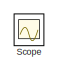
[diagram: root canvas - part 1/5, top left region]
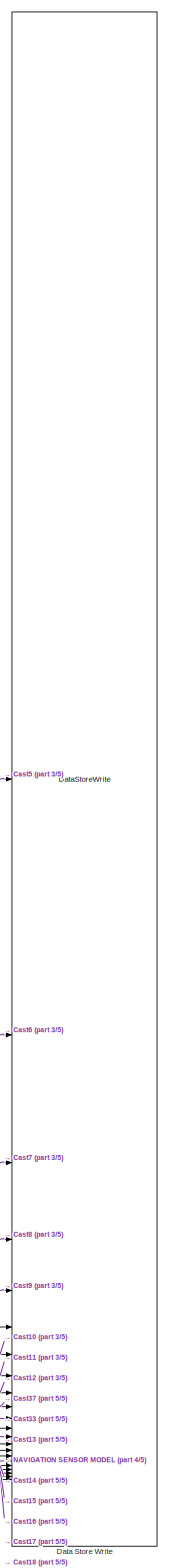
[diagram: root canvas - part 2/5, right side, full height]
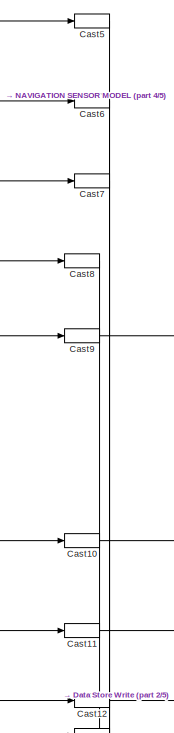
[diagram: root canvas - part 3/5, top right region]
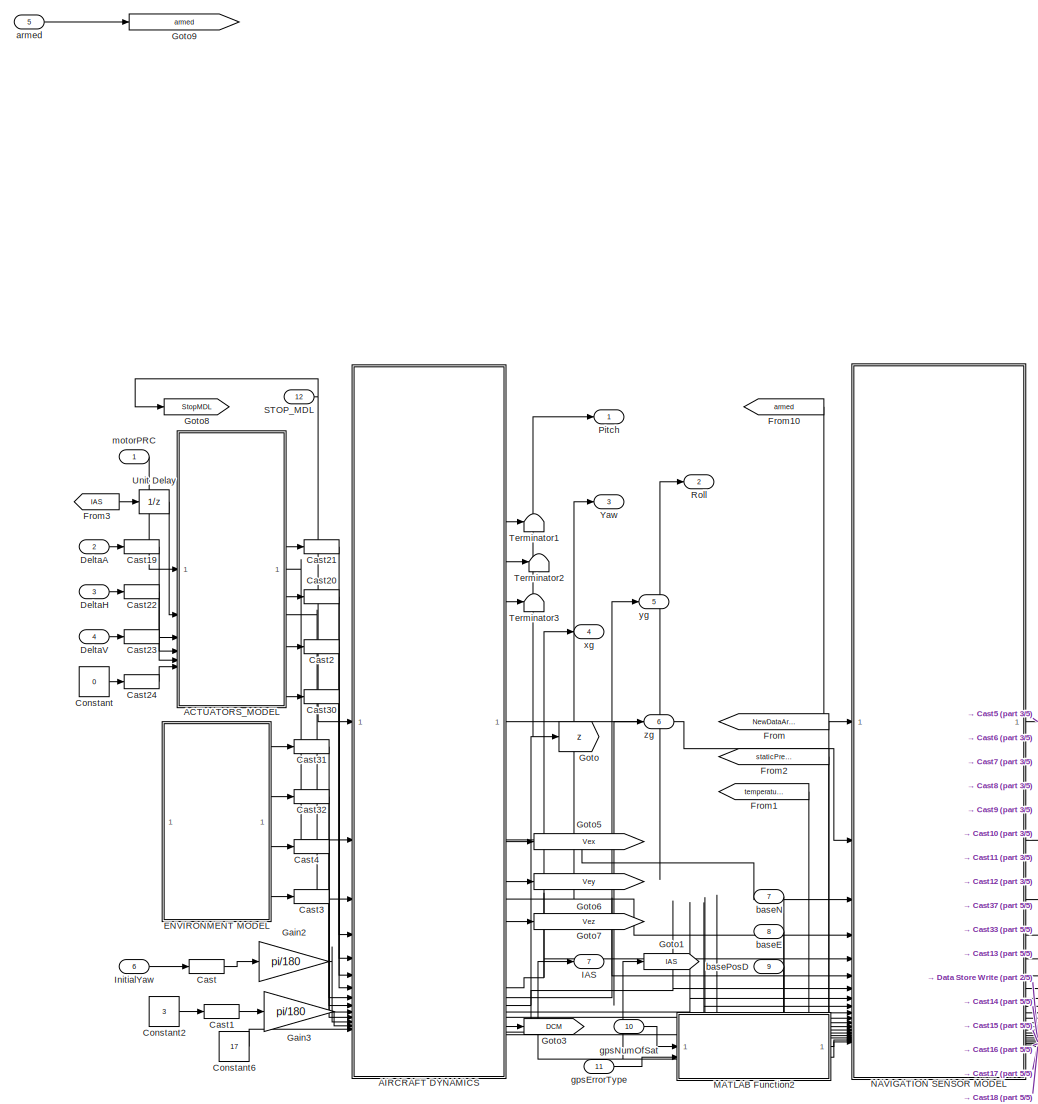
[diagram: root canvas - part 4/5, middle right region]
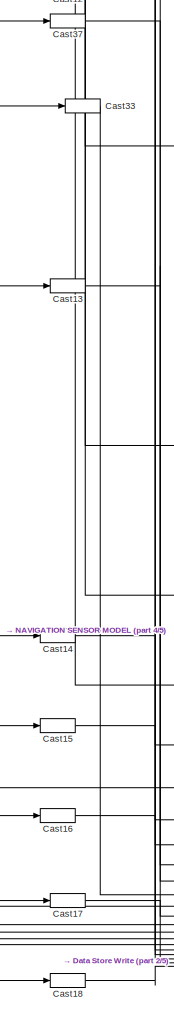
[diagram: root canvas - part 5/5, bottom right region]
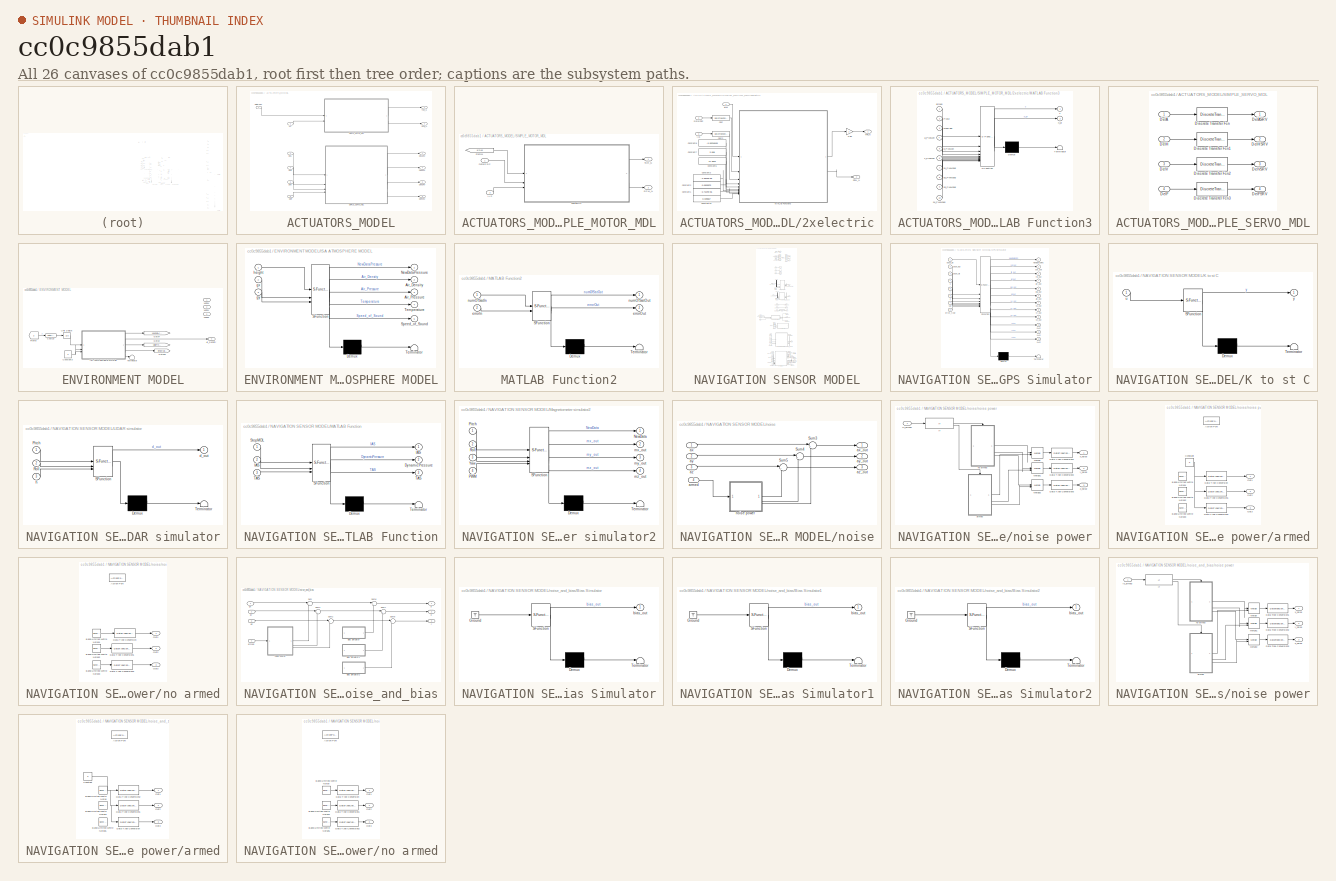
[diagram: thumbnail index - all 26 canvases of the model, root first then tree order]
MODEL slx_cc0c9855dab1
KIND model
CONFIG AbsTol = auto
CONFIG EnableMultiTasking = off
CONFIG FixedStep = 0.0025
CONFIG MaxStep = auto
CONFIG MinStep = auto
CONFIG RelTol = 1e-3
CONFIG SampleTimeConstraint = Unconstrained
CONFIG SolverName = FixedStepAuto
CONFIG StartTime = 0.0
CONFIG StopTime = 20
BLOCK [SubSystem] ACTUATORS_MODEL
BLOCK [Inport] ACTUATORS_MODEL/DelA
  Port = 3
BLOCK [Outport] ACTUATORS_MODEL/DelASRV
  Port = 3
BLOCK [Inport] ACTUATORS_MODEL/DelF
  Port = 6
BLOCK [Outport] ACTUATORS_MODEL/DelFSRV
  Port = 6
BLOCK [Inport] ACTUATORS_MODEL/DelH
  Port = 4
BLOCK [Outport] ACTUATORS_MODEL/DelHSRV
  Port = 4
BLOCK [Inport] ACTUATORS_MODEL/DelV
  Port = 5
BLOCK [Outport] ACTUATORS_MODEL/DelVSRV
  Port = 5
BLOCK [Inport] ACTUATORS_MODEL/IAS
  Port = 2
BLOCK [Outport] ACTUATORS_MODEL/RPM_%
  Port = 2
BLOCK [SubSystem] ACTUATORS_MODEL/SIMPLE_MOTOR_MDL
BLOCK [SubSystem] ACTUATORS_MODEL/SIMPLE_MOTOR_MDL/2xelectric
  VariantControl = (default)
BLOCK [DataTypeConversion] ACTUATORS_MODEL/SIMPLE_MOTOR_MDL/2xelectric/Cast
  OutDataTypeStr = double
  RndMeth = Floor
  SaturateOnIntegerOverflow = off
BLOCK [DataTypeConversion] ACTUATORS_MODEL/SIMPLE_MOTOR_MDL/2xelectric/Cast2
  OutDataTypeStr = double
  RndMeth = Floor
  SaturateOnIntegerOverflow = off
BLOCK [Constant] ACTUATORS_MODEL/SIMPLE_MOTOR_MDL/2xelectric/Constant1
  OutDataTypeStr = double
  SampleTime = -1
  Value = -3.7124e-05
BLOCK [Constant] ACTUATORS_MODEL/SIMPLE_MOTOR_MDL/2xelectric/Constant10
  OutDataTypeStr = double
  SampleTime = -1
  Value = 0.039867
BLOCK [Constant] ACTUATORS_MODEL/SIMPLE_MOTOR_MDL/2xelectric/Constant2
  OutDataTypeStr = double
  SampleTime = -1
  Value = 0.0003975
BLOCK [Constant] ACTUATORS_MODEL/SIMPLE_MOTOR_MDL/2xelectric/Constant3
  OutDataTypeStr = double
  SampleTime = -1
  Value = -1.0611e-06
BLOCK [Constant] ACTUATORS_MODEL/SIMPLE_MOTOR_MDL/2xelectric/Constant6
  OutDataTypeStr = double
  SampleTime = -1
  Value = 17.4512
BLOCK [Constant] ACTUATORS_MODEL/SIMPLE_MOTOR_MDL/2xelectric/Constant7
  OutDataTypeStr = double
  SampleTime = -1
  Value = 2.068
BLOCK [Constant] ACTUATORS_MODEL/SIMPLE_MOTOR_MDL/2xelectric/Constant8
  OutDataTypeStr = double
  SampleTime = -1
  Value = -0.00218193
BLOCK [Gain] ACTUATORS_MODEL/SIMPLE_MOTOR_MDL/2xelectric/Gain
  Gain = 2
BLOCK [Inport] ACTUATORS_MODEL/SIMPLE_MOTOR_MDL/2xelectric/IAS
  Port = 3
BLOCK [SubSystem] ACTUATORS_MODEL/SIMPLE_MOTOR_MDL/2xelectric/MATLAB Function3
  ErrorFcn = Stateflow.Translate.translate
  PermitHierarchicalResolution = ExplicitOnly
  SFBlockType = MATLAB Function
  TreatAsAtomicUnit = on
BLOCK [Demux] ACTUATORS_MODEL/SIMPLE_MOTOR_MDL/2xelectric/MATLAB Function3/ Demux 
  Outputs = 1
BLOCK [S-Function] ACTUATORS_MODEL/SIMPLE_MOTOR_MDL/2xelectric/MATLAB Function3/ SFunction 
  EnableBusSupport = on
  FunctionName = sf_sfun
  PortCounts = [10 3]
  SFcnIsStateOwnerBlock = off
  SFunctionDeploymentMode = off
  Tag = Stateflow S-Function 194
BLOCK [Terminator] ACTUATORS_MODEL/SIMPLE_MOTOR_MDL/2xelectric/MATLAB Function3/ Terminator 
BLOCK [Inport] ACTUATORS_MODEL/SIMPLE_MOTOR_MDL/2xelectric/MATLAB Function3/PWM
  Port = 2
BLOCK [Outport] ACTUATORS_MODEL/SIMPLE_MOTOR_MDL/2xelectric/MATLAB Function3/T
  VectorParamsAs1DForOutWhenUnconnected = off
BLOCK [Inport] ACTUATORS_MODEL/SIMPLE_MOTOR_MDL/2xelectric/MATLAB Function3/a_PWM2n
  Port = 4
BLOCK [Inport] ACTUATORS_MODEL/SIMPLE_MOTOR_MDL/2xelectric/MATLAB Function3/armed
BLOCK [Inport] ACTUATORS_MODEL/SIMPLE_MOTOR_MDL/2xelectric/MATLAB Function3/b_PWM2n
  Port = 5
BLOCK [Inport] ACTUATORS_MODEL/SIMPLE_MOTOR_MDL/2xelectric/MATLAB Function3/c_PWM2n
  Port = 6
BLOCK [Inport] ACTUATORS_MODEL/SIMPLE_MOTOR_MDL/2xelectric/MATLAB Function3/modVaer
  Port = 3
BLOCK [Outport] ACTUATORS_MODEL/SIMPLE_MOTOR_MDL/2xelectric/MATLAB Function3/n_pr
  Port = 2
  VectorParamsAs1DForOutWhenUnconnected = off
BLOCK [Inport] ACTUATORS_MODEL/SIMPLE_MOTOR_MDL/2xelectric/MATLAB Function3/p1_PWM2kg
  Port = 7
BLOCK [Inport] ACTUATORS_MODEL/SIMPLE_MOTOR_MDL/2xelectric/MATLAB Function3/p2_PWM2kg
  Port = 8
BLOCK [Inport] ACTUATORS_MODEL/SIMPLE_MOTOR_MDL/2xelectric/MATLAB Function3/p3_PWM2kg
  Port = 9
BLOCK [Inport] ACTUATORS_MODEL/SIMPLE_MOTOR_MDL/2xelectric/MATLAB Function3/p4_PWM2kg
  Port = 10
BLOCK [Outport] ACTUATORS_MODEL/SIMPLE_MOTOR_MDL/2xelectric/RPM_%
  Port = 2
BLOCK [Outport] ACTUATORS_MODEL/SIMPLE_MOTOR_MDL/2xelectric/THR_N
BLOCK [Inport] ACTUATORS_MODEL/SIMPLE_MOTOR_MDL/2xelectric/arm
BLOCK [Inport] ACTUATORS_MODEL/SIMPLE_MOTOR_MDL/2xelectric/motorPRC
  Port = 2
BLOCK [From] ACTUATORS_MODEL/SIMPLE_MOTOR_MDL/From11
  GotoTag = armed
  TagVisibility = global
BLOCK [Inport] ACTUATORS_MODEL/SIMPLE_MOTOR_MDL/IAS
  Port = 2
BLOCK [Outport] ACTUATORS_MODEL/SIMPLE_MOTOR_MDL/RPM_%
  Port = 2
BLOCK [Outport] ACTUATORS_MODEL/SIMPLE_MOTOR_MDL/THR_N
BLOCK [Inport] ACTUATORS_MODEL/SIMPLE_MOTOR_MDL/motorPRC
BLOCK [SubSystem] ACTUATORS_MODEL/SIMPLE_SERVO_MDL
BLOCK [Inport] ACTUATORS_MODEL/SIMPLE_SERVO_MDL/DelA
BLOCK [Outport] ACTUATORS_MODEL/SIMPLE_SERVO_MDL/DelASRV
BLOCK [Inport] ACTUATORS_MODEL/SIMPLE_SERVO_MDL/DelF
  Port = 4
BLOCK [Outport] ACTUATORS_MODEL/SIMPLE_SERVO_MDL/DelFSRV
  Port = 4
BLOCK [Inport] ACTUATORS_MODEL/SIMPLE_SERVO_MDL/DelH
  Port = 2
BLOCK [Outport] ACTUATORS_MODEL/SIMPLE_SERVO_MDL/DelHSRV
  Port = 2
BLOCK [Inport] ACTUATORS_MODEL/SIMPLE_SERVO_MDL/DelV
  Port = 3
BLOCK [Outport] ACTUATORS_MODEL/SIMPLE_SERVO_MDL/DelVSRV
  Port = 3
BLOCK [DiscreteTransferFcn] ACTUATORS_MODEL/SIMPLE_SERVO_MDL/Discrete Transfer Fcn
  Denominator = [1	-1.90810999635018	-0.0870514284817427	1.90684266473014	-0.911531814256778]
  InputPortMap = u0
  Numerator = [0 0.000322421150918839 -0.000173176804593514]
BLOCK [DiscreteTransferFcn] ACTUATORS_MODEL/SIMPLE_SERVO_MDL/Discrete Transfer Fcn1
  Denominator = [1	-1.90810999635018	-0.0870514284817427	1.90684266473014	-0.911531814256778]
  InputPortMap = u0
  Numerator = [0 0.000322421150918839 -0.000173176804593514]
BLOCK [DiscreteTransferFcn] ACTUATORS_MODEL/SIMPLE_SERVO_MDL/Discrete Transfer Fcn2
  Denominator = [1	-1.90810999635018	-0.0870514284817427	1.90684266473014	-0.911531814256778]
  InputPortMap = u0
  Numerator = [0 0.000322421150918839 -0.000173176804593514]
BLOCK [DiscreteTransferFcn] ACTUATORS_MODEL/SIMPLE_SERVO_MDL/Discrete Transfer Fcn3
  Denominator = [1	-1.90810999635018	-0.0870514284817427	1.90684266473014	-0.911531814256778]
  InputPortMap = u0
  Numerator = [0 0.000322421150918839 -0.000173176804593514]
BLOCK [Outport] ACTUATORS_MODEL/THR_N
BLOCK [Inport] ACTUATORS_MODEL/motorPRC
BLOCK [ModelReference] AIRCRAFT DYNAMICS
  ModelNameDialog = PlaneSimulationModel_r17.slx
  ModelReferenceVersion = 11.9
  Priority = 10
BLOCK [DataTypeConversion] Cast
  OutDataTypeStr = double
  RndMeth = Floor
  SaturateOnIntegerOverflow = off
BLOCK [DataTypeConversion] Cast1
  OutDataTypeStr = double
  RndMeth = Floor
  SaturateOnIntegerOverflow = off
BLOCK [DataTypeConversion] Cast10
  OutDataTypeStr = single
  RndMeth = Floor
  SaturateOnIntegerOverflow = off
BLOCK [DataTypeConversion] Cast11
  OutDataTypeStr = single
  RndMeth = Floor
  SaturateOnIntegerOverflow = off
BLOCK [DataTypeConversion] Cast12
  OutDataTypeStr = single
  RndMeth = Floor
  SaturateOnIntegerOverflow = off
BLOCK [DataTypeConversion] Cast13
  OutDataTypeStr = single
  RndMeth = Floor
  SaturateOnIntegerOverflow = off
BLOCK [DataTypeConversion] Cast14
  OutDataTypeStr = single
  RndMeth = Floor
  SaturateOnIntegerOverflow = off
BLOCK [DataTypeConversion] Cast15
  OutDataTypeStr = single
  RndMeth = Floor
  SaturateOnIntegerOverflow = off
BLOCK [DataTypeConversion] Cast16
  OutDataTypeStr = single
  RndMeth = Floor
  SaturateOnIntegerOverflow = off
BLOCK [DataTypeConversion] Cast17
  OutDataTypeStr = single
  RndMeth = Floor
  SaturateOnIntegerOverflow = off
BLOCK [DataTypeConversion] Cast18
  OutDataTypeStr = single
  RndMeth = Floor
  SaturateOnIntegerOverflow = off
BLOCK [DataTypeConversion] Cast19
  OutDataTypeStr = double
  RndMeth = Floor
  SaturateOnIntegerOverflow = off
BLOCK [DataTypeConversion] Cast2
  OutDataTypeStr = double
  RndMeth = Floor
  SaturateOnIntegerOverflow = off
BLOCK [DataTypeConversion] Cast20
  OutDataTypeStr = double
  RndMeth = Floor
  SaturateOnIntegerOverflow = off
BLOCK [DataTypeConversion] Cast21
  OutDataTypeStr = double
  RndMeth = Floor
  SaturateOnIntegerOverflow = off
BLOCK [DataTypeConversion] Cast22
  OutDataTypeStr = double
  RndMeth = Floor
  SaturateOnIntegerOverflow = off
BLOCK [DataTypeConversion] Cast23
  OutDataTypeStr = double
  RndMeth = Floor
  SaturateOnIntegerOverflow = off
BLOCK [DataTypeConversion] Cast24
  OutDataTypeStr = double
  RndMeth = Floor
  SaturateOnIntegerOverflow = off
BLOCK [DataTypeConversion] Cast3
  OutDataTypeStr = double
  RndMeth = Floor
  SaturateOnIntegerOverflow = off
BLOCK [DataTypeConversion] Cast30
  OutDataTypeStr = double
  RndMeth = Floor
  SaturateOnIntegerOverflow = off
BLOCK [DataTypeConversion] Cast31
  OutDataTypeStr = double
  RndMeth = Floor
  SaturateOnIntegerOverflow = off
BLOCK [DataTypeConversion] Cast32
  OutDataTypeStr = double
  RndMeth = Floor
  SaturateOnIntegerOverflow = off
BLOCK [DataTypeConversion] Cast33
  OutDataTypeStr = single
  RndMeth = Floor
  SaturateOnIntegerOverflow = off
BLOCK [DataTypeConversion] Cast37
  OutDataTypeStr = single
  RndMeth = Floor
  SaturateOnIntegerOverflow = off
BLOCK [DataTypeConversion] Cast4
  OutDataTypeStr = double
  RndMeth = Floor
  SaturateOnIntegerOverflow = off
BLOCK [DataTypeConversion] Cast5
  OutDataTypeStr = single
  RndMeth = Floor
  SaturateOnIntegerOverflow = off
BLOCK [DataTypeConversion] Cast6
  OutDataTypeStr = single
  RndMeth = Floor
  SaturateOnIntegerOverflow = off
BLOCK [DataTypeConversion] Cast7
  OutDataTypeStr = single
  RndMeth = Floor
  SaturateOnIntegerOverflow = off
BLOCK [DataTypeConversion] Cast8
  OutDataTypeStr = single
  RndMeth = Floor
  SaturateOnIntegerOverflow = off
BLOCK [DataTypeConversion] Cast9
  OutDataTypeStr = single
  RndMeth = Floor
  SaturateOnIntegerOverflow = off
BLOCK [Constant] Constant
  Value = 0
BLOCK [Constant] Constant2
  OutDataTypeStr = single
  SampleTime = -1
  Value = 3
BLOCK [Constant] Constant6
  OutDataTypeStr = double
  SampleTime = -1
  Value = 17
BLOCK [DataStoreWrite] Data Store Write
  DataStoreElements = MODEL_DATA.pitch#MODEL_DATA.roll#MODEL_DATA.yaw#MODEL_DATA.gyro(:,:)#MODEL_DATA.accel(:,:)#MODEL_DATA.newDateAero#MODEL_DATA.pressure#MODEL_DATA.temperature#MODEL_DATA.airSpeed#MODEL_DATA.dynamicPressure#MODEL_DATA.trueAirspeed#MODEL_DATA.newDataMag#MODEL_DATA.mag(:,:)#MODEL_DATA.newDataGPS#MODEL_DATA.gpsNumOfSat#MODEL_DATA.gpsFix#MODEL_DATA.gpsPosNE(:,:)#MODEL_DATA.gpsPosD#MODEL_DATA.gpsVelNED#MO...<+54ch>
  DataStoreName = MODEL_DATA
  IndexOptions = Index vector (dialog)
  Indices = 1
  OutputSizes = 1
BLOCK [Inport] DeltaA
  Port = 2
BLOCK [Inport] DeltaH
  Port = 3
BLOCK [Inport] DeltaV
  Port = 4
BLOCK [SubSystem] ENVIRONMENT MODEL
BLOCK [Outport] ENVIRONMENT MODEL/Air_Density
  Port = 4
BLOCK [DataTypeConversion] ENVIRONMENT MODEL/Cast19
  OutDataTypeStr = single
  RndMeth = Floor
  SaturateOnIntegerOverflow = off
BLOCK [Constant] ENVIRONMENT MODEL/Constant3
  OutDataTypeStr = single
  SampleTime = -1
  Value = 0
BLOCK [From] ENVIRONMENT MODEL/From8
  GotoTag = z
BLOCK [Goto] ENVIRONMENT MODEL/Goto2
  GotoTag = staticPressure
  TagVisibility = global
BLOCK [Goto] ENVIRONMENT MODEL/Goto30
  GotoTag = temperature
  TagVisibility = global
BLOCK [Goto] ENVIRONMENT MODEL/Goto4
  GotoTag = NewDataAreo
  TagVisibility = global
BLOCK [SubSystem] ENVIRONMENT MODEL/ISA ATMOSPHERE MODEL
  ErrorFcn = Stateflow.Translate.translate
  PermitHierarchicalResolution = ExplicitOnly
  SFBlockType = MATLAB Function
  TreatAsAtomicUnit = on
BLOCK [Demux] ENVIRONMENT MODEL/ISA ATMOSPHERE MODEL/ Demux 
  Outputs = 1
BLOCK [S-Function] ENVIRONMENT MODEL/ISA ATMOSPHERE MODEL/ SFunction 
  EnableBusSupport = on
  FunctionName = sf_sfun
  Parameters = acc_to_gravity,air_density,delay,dt,en_acc_pressure_noise,frequency,gas_const,height_of_tropopause,height_of_troposphere,lapse_rate,lowest_altitude,max_bias_time,max_bias_value,pressure_deviation,pressure_sea_level,ratio_heats,temperature_sea_level
  PortCounts = [3 6]
  SFcnIsStateOwnerBlock = off
  SFunctionDeploymentMode = off
  Tag = Stateflow S-Function 151
BLOCK [Terminator] ENVIRONMENT MODEL/ISA ATMOSPHERE MODEL/ Terminator 
BLOCK [Outport] ENVIRONMENT MODEL/ISA ATMOSPHERE MODEL/Air_Density
  Port = 2
  VectorParamsAs1DForOutWhenUnconnected = off
BLOCK [Outport] ENVIRONMENT MODEL/ISA ATMOSPHERE MODEL/Air_Pressure
  Port = 3
  VectorParamsAs1DForOutWhenUnconnected = off
BLOCK [Outport] ENVIRONMENT MODEL/ISA ATMOSPHERE MODEL/NewDataPressure
BLOCK [Outport] ENVIRONMENT MODEL/ISA ATMOSPHERE MODEL/Speed_of_Sound
  Port = 5
  VectorParamsAs1DForOutWhenUnconnected = off
BLOCK [Outport] ENVIRONMENT MODEL/ISA ATMOSPHERE MODEL/Temperature
  Port = 4
  VectorParamsAs1DForOutWhenUnconnected = off
BLOCK [Inport] ENVIRONMENT MODEL/ISA ATMOSPHERE MODEL/gx
  Port = 2
BLOCK [Inport] ENVIRONMENT MODEL/ISA ATMOSPHERE MODEL/gy
  Port = 3
BLOCK [Inport] ENVIRONMENT MODEL/ISA ATMOSPHERE MODEL/height
BLOCK [Terminator] ENVIRONMENT MODEL/Terminator
BLOCK [UnitDelay] ENVIRONMENT MODEL/Unit Delay6
  HasFrameUpgradeWarning = on
  SampleTime = -1
BLOCK [Outport] ENVIRONMENT MODEL/WindX
BLOCK [Outport] ENVIRONMENT MODEL/WindY
  Port = 2
BLOCK [Outport] ENVIRONMENT MODEL/WindZ
  Port = 3
BLOCK [From] From
  GotoTag = NewDataAreo
  TagVisibility = global
BLOCK [From] From1
  GotoTag = temperature
  TagVisibility = global
BLOCK [From] From10
  GotoTag = armed
  TagVisibility = global
BLOCK [From] From2
  GotoTag = staticPressure
  TagVisibility = global
BLOCK [From] From3
  GotoTag = IAS
BLOCK [Gain] Gain2
  Gain = pi/180
BLOCK [Gain] Gain3
  Gain = pi/180
BLOCK [Goto] Goto
  GotoTag = z
BLOCK [Goto] Goto1
  GotoTag = IAS
BLOCK [Goto] Goto3
  GotoTag = DCM
BLOCK [Goto] Goto5
  GotoTag = Vex
BLOCK [Goto] Goto6
  GotoTag = Vey
BLOCK [Goto] Goto7
  GotoTag = Vez
BLOCK [Goto] Goto8
  GotoTag = StopMDL
  TagVisibility = global
BLOCK [Goto] Goto9
  GotoTag = armed
  TagVisibility = global
BLOCK [Outport] IAS
  Port = 7
BLOCK [Inport] InitialYaw
  Port = 6
BLOCK [SubSystem] MATLAB Function2
  ErrorFcn = Stateflow.Translate.translate
  PermitHierarchicalResolution = ExplicitOnly
  SFBlockType = MATLAB Function
  TreatAsAtomicUnit = on
BLOCK [Demux] MATLAB Function2/ Demux 
  Outputs = 1
BLOCK [S-Function] MATLAB Function2/ SFunction 
  EnableBusSupport = on
  FunctionName = sf_sfun
  PortCounts = [2 3]
  SFcnIsStateOwnerBlock = off
  SFunctionDeploymentMode = off
  Tag = Stateflow S-Function 176
BLOCK [Terminator] MATLAB Function2/ Terminator 
BLOCK [Inport] MATLAB Function2/errorIn
  Port = 2
BLOCK [Outport] MATLAB Function2/errorOut
  Port = 2
BLOCK [Inport] MATLAB Function2/numOfSatIn
BLOCK [Outport] MATLAB Function2/numOfSatOut
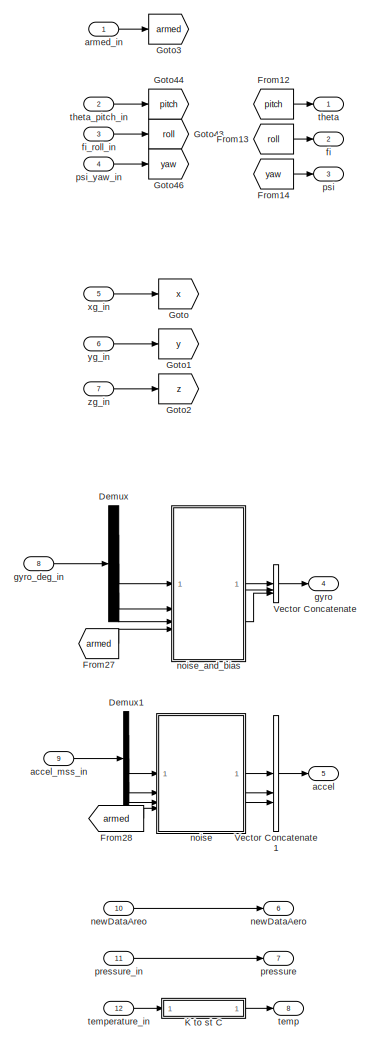
[diagram: NAVIGATION SENSOR MODEL - part 1/2, top center region]
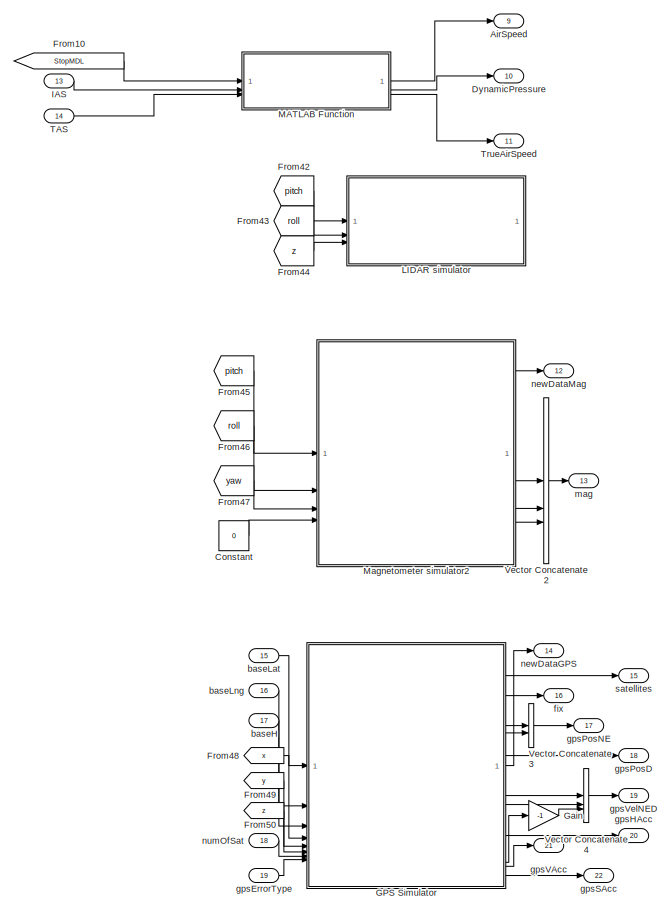
[diagram: NAVIGATION SENSOR MODEL - part 2/2, full width, bottom band]
BLOCK [SubSystem] NAVIGATION SENSOR MODEL
  Priority = 50
BLOCK [Outport] NAVIGATION SENSOR MODEL/AirSpeed
  Port = 9
  VectorParamsAs1DForOutWhenUnconnected = off
BLOCK [Constant] NAVIGATION SENSOR MODEL/Constant
  OutDataTypeStr = double
  SampleTime = -1
  Value = 0
BLOCK [Demux] NAVIGATION SENSOR MODEL/Demux
  Outputs = 3
BLOCK [Demux] NAVIGATION SENSOR MODEL/Demux1
  Outputs = 3
BLOCK [Outport] NAVIGATION SENSOR MODEL/DynamicPressure
  Port = 10
  VectorParamsAs1DForOutWhenUnconnected = off
BLOCK [From] NAVIGATION SENSOR MODEL/From10
  GotoTag = StopMDL
  TagVisibility = global
BLOCK [From] NAVIGATION SENSOR MODEL/From12
  GotoTag = pitch
  TagVisibility = global
BLOCK [From] NAVIGATION SENSOR MODEL/From13
  GotoTag = roll
  TagVisibility = global
BLOCK [From] NAVIGATION SENSOR MODEL/From14
  GotoTag = yaw
  TagVisibility = global
BLOCK [From] NAVIGATION SENSOR MODEL/From27
  GotoTag = armed
BLOCK [From] NAVIGATION SENSOR MODEL/From28
  GotoTag = armed
BLOCK [From] NAVIGATION SENSOR MODEL/From42
  Commented = on
  GotoTag = pitch
  TagVisibility = global
BLOCK [From] NAVIGATION SENSOR MODEL/From43
  Commented = on
  GotoTag = roll
  TagVisibility = global
BLOCK [From] NAVIGATION SENSOR MODEL/From44
  Commented = on
  GotoTag = z
  TagVisibility = global
BLOCK [From] NAVIGATION SENSOR MODEL/From45
  GotoTag = pitch
  TagVisibility = global
BLOCK [From] NAVIGATION SENSOR MODEL/From46
  GotoTag = roll
  TagVisibility = global
BLOCK [From] NAVIGATION SENSOR MODEL/From47
  GotoTag = yaw
  TagVisibility = global
BLOCK [From] NAVIGATION SENSOR MODEL/From48
  GotoTag = x
BLOCK [From] NAVIGATION SENSOR MODEL/From49
  GotoTag = y
BLOCK [From] NAVIGATION SENSOR MODEL/From50
  GotoTag = z
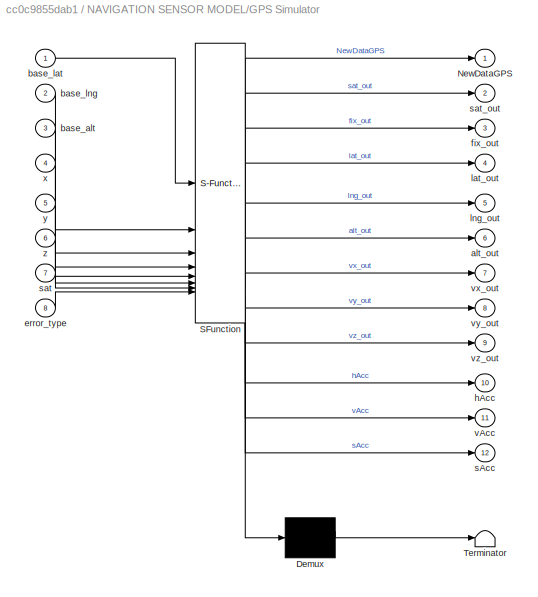
BLOCK [SubSystem] NAVIGATION SENSOR MODEL/GPS Simulator
  ErrorFcn = Stateflow.Translate.translate
  PermitHierarchicalResolution = ExplicitOnly
  SFBlockType = MATLAB Function
  TreatAsAtomicUnit = on
BLOCK [Demux] NAVIGATION SENSOR MODEL/GPS Simulator/ Demux 
  Outputs = 1
BLOCK [S-Function] NAVIGATION SENSOR MODEL/GPS Simulator/ SFunction 
  EnableBusSupport = on
  FunctionName = sf_sfun
  Parameters = dt,f_gps,gps_delay,sigma,sigma_alt
  PortCounts = [8 13]
  SFcnIsStateOwnerBlock = off
  SFunctionDeploymentMode = off
  Tag = Stateflow S-Function 155
BLOCK [Terminator] NAVIGATION SENSOR MODEL/GPS Simulator/ Terminator 
BLOCK [Outport] NAVIGATION SENSOR MODEL/GPS Simulator/NewDataGPS
BLOCK [Outport] NAVIGATION SENSOR MODEL/GPS Simulator/alt_out
  Port = 6
  VectorParamsAs1DForOutWhenUnconnected = off
BLOCK [Inport] NAVIGATION SENSOR MODEL/GPS Simulator/base_alt
  Port = 3
BLOCK [Inport] NAVIGATION SENSOR MODEL/GPS Simulator/base_lat
BLOCK [Inport] NAVIGATION SENSOR MODEL/GPS Simulator/base_lng
  Port = 2
BLOCK [Inport] NAVIGATION SENSOR MODEL/GPS Simulator/error_type
  Port = 8
BLOCK [Outport] NAVIGATION SENSOR MODEL/GPS Simulator/fix_out
  Port = 3
  VectorParamsAs1DForOutWhenUnconnected = off
BLOCK [Outport] NAVIGATION SENSOR MODEL/GPS Simulator/hAcc
  Port = 10
BLOCK [Outport] NAVIGATION SENSOR MODEL/GPS Simulator/lat_out
  Port = 4
  VectorParamsAs1DForOutWhenUnconnected = off
BLOCK [Outport] NAVIGATION SENSOR MODEL/GPS Simulator/lng_out
  Port = 5
  VectorParamsAs1DForOutWhenUnconnected = off
BLOCK [Outport] NAVIGATION SENSOR MODEL/GPS Simulator/sAcc
  Port = 12
BLOCK [Inport] NAVIGATION SENSOR MODEL/GPS Simulator/sat
  Port = 7
BLOCK [Outport] NAVIGATION SENSOR MODEL/GPS Simulator/sat_out
  Port = 2
  VectorParamsAs1DForOutWhenUnconnected = off
BLOCK [Outport] NAVIGATION SENSOR MODEL/GPS Simulator/vAcc
  Port = 11
BLOCK [Outport] NAVIGATION SENSOR MODEL/GPS Simulator/vx_out
  Port = 7
  VectorParamsAs1DForOutWhenUnconnected = off
BLOCK [Outport] NAVIGATION SENSOR MODEL/GPS Simulator/vy_out
  Port = 8
  VectorParamsAs1DForOutWhenUnconnected = off
BLOCK [Outport] NAVIGATION SENSOR MODEL/GPS Simulator/vz_out
  Port = 9
  VectorParamsAs1DForOutWhenUnconnected = off
BLOCK [Inport] NAVIGATION SENSOR MODEL/GPS Simulator/x
  Port = 4
BLOCK [Inport] NAVIGATION SENSOR MODEL/GPS Simulator/y
  Port = 5
BLOCK [Inport] NAVIGATION SENSOR MODEL/GPS Simulator/z
  Port = 6
BLOCK [Gain] NAVIGATION SENSOR MODEL/Gain
  Gain = -1
BLOCK [Goto] NAVIGATION SENSOR MODEL/Goto
  GotoTag = x
BLOCK [Goto] NAVIGATION SENSOR MODEL/Goto1
  GotoTag = y
BLOCK [Goto] NAVIGATION SENSOR MODEL/Goto2
  GotoTag = z
BLOCK [Goto] NAVIGATION SENSOR MODEL/Goto3
  GotoTag = armed
BLOCK [Goto] NAVIGATION SENSOR MODEL/Goto43
  GotoTag = roll
  TagVisibility = global
BLOCK [Goto] NAVIGATION SENSOR MODEL/Goto44
  GotoTag = pitch
  TagVisibility = global
BLOCK [Goto] NAVIGATION SENSOR MODEL/Goto46
  GotoTag = yaw
  TagVisibility = global
BLOCK [Inport] NAVIGATION SENSOR MODEL/IAS
  Port = 13
BLOCK [SubSystem] NAVIGATION SENSOR MODEL/K to st C
  ErrorFcn = Stateflow.Translate.translate
  PermitHierarchicalResolution = ExplicitOnly
  SFBlockType = MATLAB Function
  TreatAsAtomicUnit = on
BLOCK [Demux] NAVIGATION SENSOR MODEL/K to st C/ Demux 
  Outputs = 1
BLOCK [S-Function] NAVIGATION SENSOR MODEL/K to st C/ SFunction 
  EnableBusSupport = on
  FunctionName = sf_sfun
  PortCounts = [1 2]
  SFcnIsStateOwnerBlock = off
  SFunctionDeploymentMode = off
  Tag = Stateflow S-Function 197
BLOCK [Terminator] NAVIGATION SENSOR MODEL/K to st C/ Terminator 
BLOCK [Inport] NAVIGATION SENSOR MODEL/K to st C/u
BLOCK [Outport] NAVIGATION SENSOR MODEL/K to st C/y
  VectorParamsAs1DForOutWhenUnconnected = off
BLOCK [SubSystem] NAVIGATION SENSOR MODEL/LIDAR simulator
  Commented = on
  ErrorFcn = Stateflow.Translate.translate
  PermitHierarchicalResolution = ExplicitOnly
  SFBlockType = MATLAB Function
  TreatAsAtomicUnit = on
BLOCK [Demux] NAVIGATION SENSOR MODEL/LIDAR simulator/ Demux 
  Outputs = 1
BLOCK [S-Function] NAVIGATION SENSOR MODEL/LIDAR simulator/ SFunction 
  EnableBusSupport = on
  FunctionName = sf_sfun
  Parameters = dt,f_lid,lid_delay,range,sigma
  PortCounts = [3 2]
  SFcnIsStateOwnerBlock = off
  SFunctionDeploymentMode = off
  Tag = Stateflow S-Function 161
BLOCK [Terminator] NAVIGATION SENSOR MODEL/LIDAR simulator/ Terminator 
BLOCK [Inport] NAVIGATION SENSOR MODEL/LIDAR simulator/Pitch
BLOCK [Inport] NAVIGATION SENSOR MODEL/LIDAR simulator/Roll
  Port = 2
BLOCK [Outport] NAVIGATION SENSOR MODEL/LIDAR simulator/d_out
  VectorParamsAs1DForOutWhenUnconnected = off
BLOCK [Inport] NAVIGATION SENSOR MODEL/LIDAR simulator/h
  Port = 3
BLOCK [SubSystem] NAVIGATION SENSOR MODEL/MATLAB Function
  ErrorFcn = Stateflow.Translate.translate
  PermitHierarchicalResolution = ExplicitOnly
  SFBlockType = MATLAB Function
  TreatAsAtomicUnit = on
BLOCK [Demux] NAVIGATION SENSOR MODEL/MATLAB Function/ Demux 
  Outputs = 1
BLOCK [S-Function] NAVIGATION SENSOR MODEL/MATLAB Function/ SFunction 
  EnableBusSupport = on
  FunctionName = sf_sfun
  PortCounts = [3 4]
  SFcnIsStateOwnerBlock = off
  SFunctionDeploymentMode = off
  Tag = Stateflow S-Function 179
BLOCK [Terminator] NAVIGATION SENSOR MODEL/MATLAB Function/ Terminator 
BLOCK [Outport] NAVIGATION SENSOR MODEL/MATLAB Function/DynamicPressure
  Port = 2
BLOCK [Outport] NAVIGATION SENSOR MODEL/MATLAB Function/IAS
BLOCK [Inport] NAVIGATION SENSOR MODEL/MATLAB Function/IAS 
  Port = 2
BLOCK [Inport] NAVIGATION SENSOR MODEL/MATLAB Function/StopMDL
BLOCK [Outport] NAVIGATION SENSOR MODEL/MATLAB Function/TAS
  Port = 3
BLOCK [Inport] NAVIGATION SENSOR MODEL/MATLAB Function/TAS 
  Port = 3
BLOCK [SubSystem] NAVIGATION SENSOR MODEL/Magnetometer simulator2
  ErrorFcn = Stateflow.Translate.translate
  PermitHierarchicalResolution = ExplicitOnly
  SFBlockType = MATLAB Function
  TreatAsAtomicUnit = on
BLOCK [Demux] NAVIGATION SENSOR MODEL/Magnetometer simulator2/ Demux 
  Outputs = 1
BLOCK [S-Function] NAVIGATION SENSOR MODEL/Magnetometer simulator2/ SFunction 
  EnableBusSupport = on
  FunctionName = sf_sfun
  Parameters = PWM_bias,PWM_dev_min,dt,f_mag,mag_delay,sigma
  PortCounts = [4 5]
  SFcnIsStateOwnerBlock = off
  SFunctionDeploymentMode = off
  Tag = Stateflow S-Function 154
BLOCK [Terminator] NAVIGATION SENSOR MODEL/Magnetometer simulator2/ Terminator 
BLOCK [Outport] NAVIGATION SENSOR MODEL/Magnetometer simulator2/NewData
BLOCK [Inport] NAVIGATION SENSOR MODEL/Magnetometer simulator2/PWM
  Port = 4
BLOCK [Inport] NAVIGATION SENSOR MODEL/Magnetometer simulator2/Pitch
BLOCK [Inport] NAVIGATION SENSOR MODEL/Magnetometer simulator2/Roll
  Port = 2
BLOCK [Inport] NAVIGATION SENSOR MODEL/Magnetometer simulator2/Yaw
  Port = 3
BLOCK [Outport] NAVIGATION SENSOR MODEL/Magnetometer simulator2/mx_out
  Port = 2
  VectorParamsAs1DForOutWhenUnconnected = off
BLOCK [Outport] NAVIGATION SENSOR MODEL/Magnetometer simulator2/my_out
  Port = 3
  VectorParamsAs1DForOutWhenUnconnected = off
BLOCK [Outport] NAVIGATION SENSOR MODEL/Magnetometer simulator2/mz_out
  Port = 4
  VectorParamsAs1DForOutWhenUnconnected = off
BLOCK [Inport] NAVIGATION SENSOR MODEL/TAS
  Port = 14
BLOCK [Outport] NAVIGATION SENSOR MODEL/TrueAirSpeed
  Port = 11
  VectorParamsAs1DForOutWhenUnconnected = off
BLOCK [Concatenate] NAVIGATION SENSOR MODEL/Vector Concatenate
  NumInputs = 3
BLOCK [Concatenate] NAVIGATION SENSOR MODEL/Vector Concatenate1
  NumInputs = 3
BLOCK [Concatenate] NAVIGATION SENSOR MODEL/Vector Concatenate2
  NumInputs = 3
BLOCK [Concatenate] NAVIGATION SENSOR MODEL/Vector Concatenate3
BLOCK [Concatenate] NAVIGATION SENSOR MODEL/Vector Concatenate4
  NumInputs = 3
BLOCK [Outport] NAVIGATION SENSOR MODEL/accel
  Port = 5
  VectorParamsAs1DForOutWhenUnconnected = off
BLOCK [Inport] NAVIGATION SENSOR MODEL/accel_mss_in
  Port = 9
BLOCK [Inport] NAVIGATION SENSOR MODEL/armed_in
BLOCK [Inport] NAVIGATION SENSOR MODEL/baseH
  Port = 17
BLOCK [Inport] NAVIGATION SENSOR MODEL/baseLat
  Port = 15
BLOCK [Inport] NAVIGATION SENSOR MODEL/baseLng
  Port = 16
BLOCK [Outport] NAVIGATION SENSOR MODEL/fi
  Port = 2
  VectorParamsAs1DForOutWhenUnconnected = off
BLOCK [Inport] NAVIGATION SENSOR MODEL/fi_roll_in
  Port = 3
BLOCK [Outport] NAVIGATION SENSOR MODEL/fix
  Port = 16
  VectorParamsAs1DForOutWhenUnconnected = off
BLOCK [Inport] NAVIGATION SENSOR MODEL/gpsErrorType
  Port = 19
BLOCK [Outport] NAVIGATION SENSOR MODEL/gpsHAcc
  Port = 20
  VectorParamsAs1DForOutWhenUnconnected = off
BLOCK [Outport] NAVIGATION SENSOR MODEL/gpsPosD
  Port = 18
  VectorParamsAs1DForOutWhenUnconnected = off
BLOCK [Outport] NAVIGATION SENSOR MODEL/gpsPosNE
  Port = 17
  VectorParamsAs1DForOutWhenUnconnected = off
BLOCK [Outport] NAVIGATION SENSOR MODEL/gpsSAcc
  Port = 22
  VectorParamsAs1DForOutWhenUnconnected = off
BLOCK [Outport] NAVIGATION SENSOR MODEL/gpsVAcc
  Port = 21
  VectorParamsAs1DForOutWhenUnconnected = off
BLOCK [Outport] NAVIGATION SENSOR MODEL/gpsVelNED
  Port = 19
  VectorParamsAs1DForOutWhenUnconnected = off
BLOCK [Outport] NAVIGATION SENSOR MODEL/gyro
  Port = 4
  VectorParamsAs1DForOutWhenUnconnected = off
BLOCK [Inport] NAVIGATION SENSOR MODEL/gyro_deg_in
  Port = 8
BLOCK [Outport] NAVIGATION SENSOR MODEL/mag
  Port = 13
  VectorParamsAs1DForOutWhenUnconnected = off
BLOCK [Outport] NAVIGATION SENSOR MODEL/newDataAero
  Port = 6
  VectorParamsAs1DForOutWhenUnconnected = off
BLOCK [Inport] NAVIGATION SENSOR MODEL/newDataAreo
  Port = 10
BLOCK [Outport] NAVIGATION SENSOR MODEL/newDataGPS
  Port = 14
  VectorParamsAs1DForOutWhenUnconnected = off
BLOCK [Outport] NAVIGATION SENSOR MODEL/newDataMag
  Port = 12
  VectorParamsAs1DForOutWhenUnconnected = off
BLOCK [SubSystem] NAVIGATION SENSOR MODEL/noise
BLOCK [Sum] NAVIGATION SENSOR MODEL/noise/Sum3
  Inputs = |++
BLOCK [Sum] NAVIGATION SENSOR MODEL/noise/Sum4
  Inputs = |++
BLOCK [Sum] NAVIGATION SENSOR MODEL/noise/Sum5
  Inputs = |++
BLOCK [Inport] NAVIGATION SENSOR MODEL/noise/armed
  Port = 4
BLOCK [Inport] NAVIGATION SENSOR MODEL/noise/ax
BLOCK [Outport] NAVIGATION SENSOR MODEL/noise/ax_out
  VectorParamsAs1DForOutWhenUnconnected = off
BLOCK [Inport] NAVIGATION SENSOR MODEL/noise/ay
  Port = 2
BLOCK [Outport] NAVIGATION SENSOR MODEL/noise/ay_out
  Port = 2
  VectorParamsAs1DForOutWhenUnconnected = off
BLOCK [Inport] NAVIGATION SENSOR MODEL/noise/az
  Port = 3
BLOCK [Outport] NAVIGATION SENSOR MODEL/noise/az_out
  Port = 3
  VectorParamsAs1DForOutWhenUnconnected = off
BLOCK [SubSystem] NAVIGATION SENSOR MODEL/noise/noise power
BLOCK [DataTypeConversion] NAVIGATION SENSOR MODEL/noise/noise power/Data Type Conversion1
  OutDataTypeStr = single
  RndMeth = Floor
  SaturateOnIntegerOverflow = off
BLOCK [DataTypeConversion] NAVIGATION SENSOR MODEL/noise/noise power/Data Type Conversion2
  OutDataTypeStr = single
  RndMeth = Floor
  SaturateOnIntegerOverflow = off
BLOCK [DataTypeConversion] NAVIGATION SENSOR MODEL/noise/noise power/Data Type Conversion3
  OutDataTypeStr = single
  RndMeth = Floor
  SaturateOnIntegerOverflow = off
BLOCK [If] NAVIGATION SENSOR MODEL/noise/noise power/If
  IfExpression = u1 == 0
BLOCK [Merge] NAVIGATION SENSOR MODEL/noise/noise power/Merge
BLOCK [Merge] NAVIGATION SENSOR MODEL/noise/noise power/Merge1
BLOCK [Merge] NAVIGATION SENSOR MODEL/noise/noise power/Merge2
BLOCK [SubSystem] NAVIGATION SENSOR MODEL/noise/noise power/armed
  TreatAsAtomicUnit = on
BLOCK [ActionPort] NAVIGATION SENSOR MODEL/noise/noise power/armed/Action Port
  ActionPortLabel = else
BLOCK [Reference] NAVIGATION SENSOR MODEL/noise/noise power/armed/Band-Limited White Noise1  REF=simulink/Sources/Band-Limited
White Noise
  Commented = on
  SourceBlock = simulink/Sources/Band-Limited\nWhite Noise
  SourceType = Band-Limited White Noise.
BLOCK [Reference] NAVIGATION SENSOR MODEL/noise/noise power/armed/Band-Limited White Noise2  REF=simulink/Sources/Band-Limited
White Noise
  Commented = on
  SourceBlock = simulink/Sources/Band-Limited\nWhite Noise
  SourceType = Band-Limited White Noise.
BLOCK [Reference] NAVIGATION SENSOR MODEL/noise/noise power/armed/Band-Limited White Noise3  REF=simulink/Sources/Band-Limited
White Noise
  Commented = on
  SourceBlock = simulink/Sources/Band-Limited\nWhite Noise
  SourceType = Band-Limited White Noise.
BLOCK [Constant] NAVIGATION SENSOR MODEL/noise/noise power/armed/Constant
  OutDataTypeStr = single
  SampleTime = -1
  Value = 0
BLOCK [DataTypeConversion] NAVIGATION SENSOR MODEL/noise/noise power/armed/Data Type Conversion
  OutDataTypeStr = single
  RndMeth = Floor
  SaturateOnIntegerOverflow = off
BLOCK [DataTypeConversion] NAVIGATION SENSOR MODEL/noise/noise power/armed/Data Type Conversion1
  OutDataTypeStr = single
  RndMeth = Floor
  SaturateOnIntegerOverflow = off
BLOCK [DataTypeConversion] NAVIGATION SENSOR MODEL/noise/noise power/armed/Data Type Conversion2
  OutDataTypeStr = single
  RndMeth = Floor
  SaturateOnIntegerOverflow = off
BLOCK [Outport] NAVIGATION SENSOR MODEL/noise/noise power/armed/Out1
  VectorParamsAs1DForOutWhenUnconnected = off
BLOCK [Outport] NAVIGATION SENSOR MODEL/noise/noise power/armed/Out2
  Port = 2
  VectorParamsAs1DForOutWhenUnconnected = off
BLOCK [Outport] NAVIGATION SENSOR MODEL/noise/noise power/armed/Out3
  Port = 3
  VectorParamsAs1DForOutWhenUnconnected = off
BLOCK [Inport] NAVIGATION SENSOR MODEL/noise/noise power/is_armed
BLOCK [SubSystem] NAVIGATION SENSOR MODEL/noise/noise power/no armed
  TreatAsAtomicUnit = on
BLOCK [ActionPort] NAVIGATION SENSOR MODEL/noise/noise power/no armed/Action Port
  ActionPortLabel = if(u1 == 0)
BLOCK [Reference] NAVIGATION SENSOR MODEL/noise/noise power/no armed/Band-Limited White Noise1  REF=simulink/Sources/Band-Limited
White Noise
  SourceBlock = simulink/Sources/Band-Limited\nWhite Noise
  SourceType = Band-Limited White Noise.
BLOCK [Reference] NAVIGATION SENSOR MODEL/noise/noise power/no armed/Band-Limited White Noise2  REF=simulink/Sources/Band-Limited
White Noise
  SourceBlock = simulink/Sources/Band-Limited\nWhite Noise
  SourceType = Band-Limited White Noise.
BLOCK [Reference] NAVIGATION SENSOR MODEL/noise/noise power/no armed/Band-Limited White Noise3  REF=simulink/Sources/Band-Limited
White Noise
  SourceBlock = simulink/Sources/Band-Limited\nWhite Noise
  SourceType = Band-Limited White Noise.
BLOCK [DataTypeConversion] NAVIGATION SENSOR MODEL/noise/noise power/no armed/Data Type Conversion
  OutDataTypeStr = single
  RndMeth = Floor
  SaturateOnIntegerOverflow = off
BLOCK [DataTypeConversion] NAVIGATION SENSOR MODEL/noise/noise power/no armed/Data Type Conversion1
  OutDataTypeStr = single
  RndMeth = Floor
  SaturateOnIntegerOverflow = off
BLOCK [DataTypeConversion] NAVIGATION SENSOR MODEL/noise/noise power/no armed/Data Type Conversion2
  OutDataTypeStr = single
  RndMeth = Floor
  SaturateOnIntegerOverflow = off
BLOCK [Outport] NAVIGATION SENSOR MODEL/noise/noise power/no armed/Out1
  VectorParamsAs1DForOutWhenUnconnected = off
BLOCK [Outport] NAVIGATION SENSOR MODEL/noise/noise power/no armed/Out2
  Port = 2
  VectorParamsAs1DForOutWhenUnconnected = off
BLOCK [Outport] NAVIGATION SENSOR MODEL/noise/noise power/no armed/Out3
  Port = 3
  VectorParamsAs1DForOutWhenUnconnected = off
BLOCK [Outport] NAVIGATION SENSOR MODEL/noise/noise power/x_noise
  VectorParamsAs1DForOutWhenUnconnected = off
BLOCK [Outport] NAVIGATION SENSOR MODEL/noise/noise power/y_noise
  Port = 2
  VectorParamsAs1DForOutWhenUnconnected = off
BLOCK [Outport] NAVIGATION SENSOR MODEL/noise/noise power/z_noise
  Port = 3
  VectorParamsAs1DForOutWhenUnconnected = off
BLOCK [SubSystem] NAVIGATION SENSOR MODEL/noise_and_bias
  TreatAsAtomicUnit = on
BLOCK [SubSystem] NAVIGATION SENSOR MODEL/noise_and_bias/Bias Simulator
  Commented = on
  ErrorFcn = Stateflow.Translate.translate
  PermitHierarchicalResolution = ExplicitOnly
  SFBlockType = MATLAB Function
  SystemSampleTime = 0.0025
  TreatAsAtomicUnit = on
BLOCK [Demux] NAVIGATION SENSOR MODEL/noise_and_bias/Bias Simulator/ Demux 
  Outputs = 1
BLOCK [Ground] NAVIGATION SENSOR MODEL/noise_and_bias/Bias Simulator/ Ground 
BLOCK [S-Function] NAVIGATION SENSOR MODEL/noise_and_bias/Bias Simulator/ SFunction 
  EnableBusSupport = on
  FunctionName = sf_sfun
  Parameters = max_bias,max_bias_time,st
  PortCounts = [1 2]
  SFcnIsStateOwnerBlock = off
  SFunctionDeploymentMode = off
  Tag = Stateflow S-Function 164
BLOCK [Terminator] NAVIGATION SENSOR MODEL/noise_and_bias/Bias Simulator/ Terminator 
BLOCK [Outport] NAVIGATION SENSOR MODEL/noise_and_bias/Bias Simulator/bias_out
  VectorParamsAs1DForOutWhenUnconnected = off
BLOCK [SubSystem] NAVIGATION SENSOR MODEL/noise_and_bias/Bias Simulator1
  Commented = on
  ErrorFcn = Stateflow.Translate.translate
  PermitHierarchicalResolution = ExplicitOnly
  SFBlockType = MATLAB Function
  SystemSampleTime = 0.0025
  TreatAsAtomicUnit = on
BLOCK [Demux] NAVIGATION SENSOR MODEL/noise_and_bias/Bias Simulator1/ Demux 
  Outputs = 1
BLOCK [Ground] NAVIGATION SENSOR MODEL/noise_and_bias/Bias Simulator1/ Ground 
BLOCK [S-Function] NAVIGATION SENSOR MODEL/noise_and_bias/Bias Simulator1/ SFunction 
  EnableBusSupport = on
  FunctionName = sf_sfun
  Parameters = max_bias,max_bias_time,st
  PortCounts = [1 2]
  SFcnIsStateOwnerBlock = off
  SFunctionDeploymentMode = off
  Tag = Stateflow S-Function 165
BLOCK [Terminator] NAVIGATION SENSOR MODEL/noise_and_bias/Bias Simulator1/ Terminator 
BLOCK [Outport] NAVIGATION SENSOR MODEL/noise_and_bias/Bias Simulator1/bias_out
  VectorParamsAs1DForOutWhenUnconnected = off
BLOCK [SubSystem] NAVIGATION SENSOR MODEL/noise_and_bias/Bias Simulator2
  Commented = on
  ErrorFcn = Stateflow.Translate.translate
  PermitHierarchicalResolution = ExplicitOnly
  SFBlockType = MATLAB Function
  SystemSampleTime = 0.0025
  TreatAsAtomicUnit = on
BLOCK [Demux] NAVIGATION SENSOR MODEL/noise_and_bias/Bias Simulator2/ Demux 
  Outputs = 1
BLOCK [Ground] NAVIGATION SENSOR MODEL/noise_and_bias/Bias Simulator2/ Ground 
BLOCK [S-Function] NAVIGATION SENSOR MODEL/noise_and_bias/Bias Simulator2/ SFunction 
  EnableBusSupport = on
  FunctionName = sf_sfun
  Parameters = max_bias,max_bias_time,st
  PortCounts = [1 2]
  SFcnIsStateOwnerBlock = off
  SFunctionDeploymentMode = off
  Tag = Stateflow S-Function 166
BLOCK [Terminator] NAVIGATION SENSOR MODEL/noise_and_bias/Bias Simulator2/ Terminator 
BLOCK [Outport] NAVIGATION SENSOR MODEL/noise_and_bias/Bias Simulator2/bias_out
  VectorParamsAs1DForOutWhenUnconnected = off
BLOCK [Sum] NAVIGATION SENSOR MODEL/noise_and_bias/Sum
  Inputs = |++
BLOCK [Sum] NAVIGATION SENSOR MODEL/noise_and_bias/Sum1
  Inputs = |++
BLOCK [Sum] NAVIGATION SENSOR MODEL/noise_and_bias/Sum2
  Inputs = |++
BLOCK [Sum] NAVIGATION SENSOR MODEL/noise_and_bias/Sum6
  Inputs = |++
BLOCK [Sum] NAVIGATION SENSOR MODEL/noise_and_bias/Sum7
  Inputs = |++
BLOCK [Sum] NAVIGATION SENSOR MODEL/noise_and_bias/Sum8
  Inputs = |++
BLOCK [Inport] NAVIGATION SENSOR MODEL/noise_and_bias/armed
  Port = 4
BLOCK [Inport] NAVIGATION SENSOR MODEL/noise_and_bias/gx
BLOCK [Inport] NAVIGATION SENSOR MODEL/noise_and_bias/gy
  Port = 2
BLOCK [Inport] NAVIGATION SENSOR MODEL/noise_and_bias/gz
  Port = 3
BLOCK [SubSystem] NAVIGATION SENSOR MODEL/noise_and_bias/noise power
  TreatAsAtomicUnit = on
BLOCK [DataTypeConversion] NAVIGATION SENSOR MODEL/noise_and_bias/noise power/Data Type Conversion1
  OutDataTypeStr = single
  RndMeth = Floor
  SaturateOnIntegerOverflow = off
BLOCK [DataTypeConversion] NAVIGATION SENSOR MODEL/noise_and_bias/noise power/Data Type Conversion2
  OutDataTypeStr = single
  RndMeth = Floor
  SaturateOnIntegerOverflow = off
BLOCK [DataTypeConversion] NAVIGATION SENSOR MODEL/noise_and_bias/noise power/Data Type Conversion3
  OutDataTypeStr = single
  RndMeth = Floor
  SaturateOnIntegerOverflow = off
BLOCK [If] NAVIGATION SENSOR MODEL/noise_and_bias/noise power/If
  IfExpression = u1 == 0
BLOCK [Merge] NAVIGATION SENSOR MODEL/noise_and_bias/noise power/Merge
BLOCK [Merge] NAVIGATION SENSOR MODEL/noise_and_bias/noise power/Merge1
BLOCK [Merge] NAVIGATION SENSOR MODEL/noise_and_bias/noise power/Merge2
BLOCK [SubSystem] NAVIGATION SENSOR MODEL/noise_and_bias/noise power/armed
  TreatAsAtomicUnit = on
BLOCK [ActionPort] NAVIGATION SENSOR MODEL/noise_and_bias/noise power/armed/Action Port
  ActionPortLabel = else
BLOCK [Reference] NAVIGATION SENSOR MODEL/noise_and_bias/noise power/armed/Band-Limited White Noise  REF=simulink/Sources/Band-Limited
White Noise
  Commented = on
  SourceBlock = simulink/Sources/Band-Limited\nWhite Noise
  SourceType = Band-Limited White Noise.
BLOCK [Reference] NAVIGATION SENSOR MODEL/noise_and_bias/noise power/armed/Band-Limited White Noise4  REF=simulink/Sources/Band-Limited
White Noise
  Commented = on
  SourceBlock = simulink/Sources/Band-Limited\nWhite Noise
  SourceType = Band-Limited White Noise.
BLOCK [Reference] NAVIGATION SENSOR MODEL/noise_and_bias/noise power/armed/Band-Limited White Noise5  REF=simulink/Sources/Band-Limited
White Noise
  Commented = on
  SourceBlock = simulink/Sources/Band-Limited\nWhite Noise
  SourceType = Band-Limited White Noise.
BLOCK [Constant] NAVIGATION SENSOR MODEL/noise_and_bias/noise power/armed/Constant
  OutDataTypeStr = single
  SampleTime = -1
  Value = 0
BLOCK [DataTypeConversion] NAVIGATION SENSOR MODEL/noise_and_bias/noise power/armed/Data Type Conversion
  OutDataTypeStr = single
  RndMeth = Floor
  SaturateOnIntegerOverflow = off
BLOCK [DataTypeConversion] NAVIGATION SENSOR MODEL/noise_and_bias/noise power/armed/Data Type Conversion1
  OutDataTypeStr = single
  RndMeth = Floor
  SaturateOnIntegerOverflow = off
BLOCK [DataTypeConversion] NAVIGATION SENSOR MODEL/noise_and_bias/noise power/armed/Data Type Conversion2
  OutDataTypeStr = single
  RndMeth = Floor
  SaturateOnIntegerOverflow = off
BLOCK [Outport] NAVIGATION SENSOR MODEL/noise_and_bias/noise power/armed/Out1
  VectorParamsAs1DForOutWhenUnconnected = off
BLOCK [Outport] NAVIGATION SENSOR MODEL/noise_and_bias/noise power/armed/Out2
  Port = 2
  VectorParamsAs1DForOutWhenUnconnected = off
BLOCK [Outport] NAVIGATION SENSOR MODEL/noise_and_bias/noise power/armed/Out3
  Port = 3
  VectorParamsAs1DForOutWhenUnconnected = off
BLOCK [Inport] NAVIGATION SENSOR MODEL/noise_and_bias/noise power/is_armed
BLOCK [SubSystem] NAVIGATION SENSOR MODEL/noise_and_bias/noise power/no armed
  TreatAsAtomicUnit = on
BLOCK [ActionPort] NAVIGATION SENSOR MODEL/noise_and_bias/noise power/no armed/Action Port
  ActionPortLabel = if(u1 == 0)
BLOCK [Reference] NAVIGATION SENSOR MODEL/noise_and_bias/noise power/no armed/Band-Limited White Noise  REF=simulink/Sources/Band-Limited
White Noise
  SourceBlock = simulink/Sources/Band-Limited\nWhite Noise
  SourceType = Band-Limited White Noise.
BLOCK [Reference] NAVIGATION SENSOR MODEL/noise_and_bias/noise power/no armed/Band-Limited White Noise4  REF=simulink/Sources/Band-Limited
White Noise
  SourceBlock = simulink/Sources/Band-Limited\nWhite Noise
  SourceType = Band-Limited White Noise.
BLOCK [Reference] NAVIGATION SENSOR MODEL/noise_and_bias/noise power/no armed/Band-Limited White Noise5  REF=simulink/Sources/Band-Limited
White Noise
  SourceBlock = simulink/Sources/Band-Limited\nWhite Noise
  SourceType = Band-Limited White Noise.
BLOCK [DataTypeConversion] NAVIGATION SENSOR MODEL/noise_and_bias/noise power/no armed/Data Type Conversion
  OutDataTypeStr = single
  RndMeth = Floor
  SaturateOnIntegerOverflow = off
BLOCK [DataTypeConversion] NAVIGATION SENSOR MODEL/noise_and_bias/noise power/no armed/Data Type Conversion1
  OutDataTypeStr = single
  RndMeth = Floor
  SaturateOnIntegerOverflow = off
BLOCK [DataTypeConversion] NAVIGATION SENSOR MODEL/noise_and_bias/noise power/no armed/Data Type Conversion2
  OutDataTypeStr = single
  RndMeth = Floor
  SaturateOnIntegerOverflow = off
BLOCK [Outport] NAVIGATION SENSOR MODEL/noise_and_bias/noise power/no armed/Out1
  VectorParamsAs1DForOutWhenUnconnected = off
BLOCK [Outport] NAVIGATION SENSOR MODEL/noise_and_bias/noise power/no armed/Out2
  Port = 2
  VectorParamsAs1DForOutWhenUnconnected = off
BLOCK [Outport] NAVIGATION SENSOR MODEL/noise_and_bias/noise power/no armed/Out3
  Port = 3
  VectorParamsAs1DForOutWhenUnconnected = off
BLOCK [Outport] NAVIGATION SENSOR MODEL/noise_and_bias/noise power/x_noise
  VectorParamsAs1DForOutWhenUnconnected = off
BLOCK [Outport] NAVIGATION SENSOR MODEL/noise_and_bias/noise power/y_noise
  Port = 2
  VectorParamsAs1DForOutWhenUnconnected = off
BLOCK [Outport] NAVIGATION SENSOR MODEL/noise_and_bias/noise power/z_noise
  Port = 3
  VectorParamsAs1DForOutWhenUnconnected = off
BLOCK [Outport] NAVIGATION SENSOR MODEL/noise_and_bias/p
  VectorParamsAs1DForOutWhenUnconnected = off
BLOCK [Outport] NAVIGATION SENSOR MODEL/noise_and_bias/q
  Port = 2
  VectorParamsAs1DForOutWhenUnconnected = off
BLOCK [Outport] NAVIGATION SENSOR MODEL/noise_and_bias/r
  Port = 3
  VectorParamsAs1DForOutWhenUnconnected = off
BLOCK [Inport] NAVIGATION SENSOR MODEL/numOfSat
  Port = 18
BLOCK [Outport] NAVIGATION SENSOR MODEL/pressure
  Port = 7
  VectorParamsAs1DForOutWhenUnconnected = off
BLOCK [Inport] NAVIGATION SENSOR MODEL/pressure_in
  Port = 11
BLOCK [Outport] NAVIGATION SENSOR MODEL/psi
  Port = 3
  VectorParamsAs1DForOutWhenUnconnected = off
BLOCK [Inport] NAVIGATION SENSOR MODEL/psi_yaw_in
  Port = 4
BLOCK [Outport] NAVIGATION SENSOR MODEL/satellites
  Port = 15
  VectorParamsAs1DForOutWhenUnconnected = off
BLOCK [Outport] NAVIGATION SENSOR MODEL/temp
  Port = 8
  VectorParamsAs1DForOutWhenUnconnected = off
BLOCK [Inport] NAVIGATION SENSOR MODEL/temperature_in
  Port = 12
BLOCK [Outport] NAVIGATION SENSOR MODEL/theta
  VectorParamsAs1DForOutWhenUnconnected = off
BLOCK [Inport] NAVIGATION SENSOR MODEL/theta_pitch_in
  Port = 2
BLOCK [Inport] NAVIGATION SENSOR MODEL/xg_in
  Port = 5
BLOCK [Inport] NAVIGATION SENSOR MODEL/yg_in
  Port = 6
BLOCK [Inport] NAVIGATION SENSOR MODEL/zg_in
  Port = 7
BLOCK [Outport] Pitch
BLOCK [Outport] Roll
  Port = 2
BLOCK [Inport] STOP_MDL
  Port = 12
BLOCK [Scope] Scope
  Floating = off
  IOType = viewer
  NumInputPorts = 1
  ScopeSpecificationString = Simulink.scopes.TimeScopeBlockCfg('CurrentConfiguration', extmgr.ConfigurationSet(extmgr.Configuration('Core','General UI',true),extmgr.Configuration('Core','Source UI',true),extmgr.Configuration('Sources','WiredSimulink',true),extmgr.Configuration('Visuals','Time Domain',true,'SerializedDisplays',{struct('MinYLimReal','-55.88632','MaxYLimReal','502.97692','YLabelReal','','MinYLimMag','0.00000','M...<+1430ch>
BLOCK [Terminator] Terminator1
BLOCK [Terminator] Terminator2
BLOCK [Terminator] Terminator3
BLOCK [UnitDelay] Unit Delay
  HasFrameUpgradeWarning = on
  SampleTime = -1
BLOCK [Outport] Yaw
  Port = 3
BLOCK [Inport] armed
  OutDataTypeStr = boolean
  Port = 5
BLOCK [Inport] baseE
  Port = 8
BLOCK [Inport] baseN
  Port = 7
BLOCK [Inport] basePosD
  Port = 9
BLOCK [Inport] gpsErrorType
  OutDataTypeStr = uint8
  Port = 11
BLOCK [Inport] gpsNumOfSat
  OutDataTypeStr = uint8
  Port = 10
BLOCK [Inport] motorPRC
BLOCK [Outport] xg
  Port = 4
BLOCK [Outport] yg
  Port = 5
BLOCK [Outport] zg
  Port = 6
LINE ACTUATORS_MODEL/DelA:1 -> ACTUATORS_MODEL/SIMPLE_SERVO_MDL:1
LINE ACTUATORS_MODEL/DelF:1 -> ACTUATORS_MODEL/SIMPLE_SERVO_MDL:4
LINE ACTUATORS_MODEL/DelH:1 -> ACTUATORS_MODEL/SIMPLE_SERVO_MDL:2
LINE ACTUATORS_MODEL/DelV:1 -> ACTUATORS_MODEL/SIMPLE_SERVO_MDL:3
LINE ACTUATORS_MODEL/IAS:1 -> ACTUATORS_MODEL/SIMPLE_MOTOR_MDL:2
LINE ACTUATORS_MODEL/SIMPLE_MOTOR_MDL/2xelectric/Cast2:1 -> ACTUATORS_MODEL/SIMPLE_MOTOR_MDL/2xelectric/MATLAB Function3:3
LINE ACTUATORS_MODEL/SIMPLE_MOTOR_MDL/2xelectric/Cast:1 -> ACTUATORS_MODEL/SIMPLE_MOTOR_MDL/2xelectric/MATLAB Function3:2
LINE ACTUATORS_MODEL/SIMPLE_MOTOR_MDL/2xelectric/Constant10:1 -> ACTUATORS_MODEL/SIMPLE_MOTOR_MDL/2xelectric/MATLAB Function3:10
LINE ACTUATORS_MODEL/SIMPLE_MOTOR_MDL/2xelectric/Constant1:1 -> ACTUATORS_MODEL/SIMPLE_MOTOR_MDL/2xelectric/MATLAB Function3:9
LINE ACTUATORS_MODEL/SIMPLE_MOTOR_MDL/2xelectric/Constant2:1 -> ACTUATORS_MODEL/SIMPLE_MOTOR_MDL/2xelectric/MATLAB Function3:8
LINE ACTUATORS_MODEL/SIMPLE_MOTOR_MDL/2xelectric/Constant3:1 -> ACTUATORS_MODEL/SIMPLE_MOTOR_MDL/2xelectric/MATLAB Function3:7
LINE ACTUATORS_MODEL/SIMPLE_MOTOR_MDL/2xelectric/Constant6:1 -> ACTUATORS_MODEL/SIMPLE_MOTOR_MDL/2xelectric/MATLAB Function3:6
LINE ACTUATORS_MODEL/SIMPLE_MOTOR_MDL/2xelectric/Constant7:1 -> ACTUATORS_MODEL/SIMPLE_MOTOR_MDL/2xelectric/MATLAB Function3:5
LINE ACTUATORS_MODEL/SIMPLE_MOTOR_MDL/2xelectric/Constant8:1 -> ACTUATORS_MODEL/SIMPLE_MOTOR_MDL/2xelectric/MATLAB Function3:4
LINE ACTUATORS_MODEL/SIMPLE_MOTOR_MDL/2xelectric/Gain:1 -> ACTUATORS_MODEL/SIMPLE_MOTOR_MDL/2xelectric/THR_N:1
LINE ACTUATORS_MODEL/SIMPLE_MOTOR_MDL/2xelectric/IAS:1 -> ACTUATORS_MODEL/SIMPLE_MOTOR_MDL/2xelectric/Cast2:1
LINE ACTUATORS_MODEL/SIMPLE_MOTOR_MDL/2xelectric/MATLAB Function3:1 -> ACTUATORS_MODEL/SIMPLE_MOTOR_MDL/2xelectric/Gain:1
LINE ACTUATORS_MODEL/SIMPLE_MOTOR_MDL/2xelectric/MATLAB Function3:2 -> ACTUATORS_MODEL/SIMPLE_MOTOR_MDL/2xelectric/RPM_%:1
LINE ACTUATORS_MODEL/SIMPLE_MOTOR_MDL/2xelectric/arm:1 -> ACTUATORS_MODEL/SIMPLE_MOTOR_MDL/2xelectric/MATLAB Function3:1
LINE ACTUATORS_MODEL/SIMPLE_MOTOR_MDL/2xelectric/motorPRC:1 -> ACTUATORS_MODEL/SIMPLE_MOTOR_MDL/2xelectric/Cast:1
LINE ACTUATORS_MODEL/SIMPLE_MOTOR_MDL/2xelectric:1 -> ACTUATORS_MODEL/SIMPLE_MOTOR_MDL/THR_N:1
LINE ACTUATORS_MODEL/SIMPLE_MOTOR_MDL/2xelectric:2 -> ACTUATORS_MODEL/SIMPLE_MOTOR_MDL/RPM_%:1
LINE ACTUATORS_MODEL/SIMPLE_MOTOR_MDL/From11:1 -> ACTUATORS_MODEL/SIMPLE_MOTOR_MDL/2xelectric:1
LINE ACTUATORS_MODEL/SIMPLE_MOTOR_MDL/IAS:1 -> ACTUATORS_MODEL/SIMPLE_MOTOR_MDL/2xelectric:3
LINE ACTUATORS_MODEL/SIMPLE_MOTOR_MDL/motorPRC:1 -> ACTUATORS_MODEL/SIMPLE_MOTOR_MDL/2xelectric:2
LINE ACTUATORS_MODEL/SIMPLE_MOTOR_MDL:1 -> ACTUATORS_MODEL/THR_N:1
LINE ACTUATORS_MODEL/SIMPLE_MOTOR_MDL:2 -> ACTUATORS_MODEL/RPM_%:1
LINE ACTUATORS_MODEL/SIMPLE_SERVO_MDL/DelA:1 -> ACTUATORS_MODEL/SIMPLE_SERVO_MDL/Discrete Transfer Fcn:1
LINE ACTUATORS_MODEL/SIMPLE_SERVO_MDL/DelF:1 -> ACTUATORS_MODEL/SIMPLE_SERVO_MDL/Discrete Transfer Fcn3:1
LINE ACTUATORS_MODEL/SIMPLE_SERVO_MDL/DelH:1 -> ACTUATORS_MODEL/SIMPLE_SERVO_MDL/Discrete Transfer Fcn1:1
LINE ACTUATORS_MODEL/SIMPLE_SERVO_MDL/DelV:1 -> ACTUATORS_MODEL/SIMPLE_SERVO_MDL/Discrete Transfer Fcn2:1
LINE ACTUATORS_MODEL/SIMPLE_SERVO_MDL/Discrete Transfer Fcn1:1 -> ACTUATORS_MODEL/SIMPLE_SERVO_MDL/DelHSRV:1
LINE ACTUATORS_MODEL/SIMPLE_SERVO_MDL/Discrete Transfer Fcn2:1 -> ACTUATORS_MODEL/SIMPLE_SERVO_MDL/DelVSRV:1
LINE ACTUATORS_MODEL/SIMPLE_SERVO_MDL/Discrete Transfer Fcn3:1 -> ACTUATORS_MODEL/SIMPLE_SERVO_MDL/DelFSRV:1
LINE ACTUATORS_MODEL/SIMPLE_SERVO_MDL/Discrete Transfer Fcn:1 -> ACTUATORS_MODEL/SIMPLE_SERVO_MDL/DelASRV:1
LINE ACTUATORS_MODEL/SIMPLE_SERVO_MDL:1 -> ACTUATORS_MODEL/DelASRV:1
LINE ACTUATORS_MODEL/SIMPLE_SERVO_MDL:2 -> ACTUATORS_MODEL/DelHSRV:1
LINE ACTUATORS_MODEL/SIMPLE_SERVO_MDL:3 -> ACTUATORS_MODEL/DelVSRV:1
LINE ACTUATORS_MODEL/SIMPLE_SERVO_MDL:4 -> ACTUATORS_MODEL/DelFSRV:1
LINE ACTUATORS_MODEL/motorPRC:1 -> ACTUATORS_MODEL/SIMPLE_MOTOR_MDL:1
LINE ACTUATORS_MODEL:1 -> AIRCRAFT DYNAMICS:2
LINE ACTUATORS_MODEL:2 -> AIRCRAFT DYNAMICS:3
LINE ACTUATORS_MODEL:3 -> Cast21:1
LINE ACTUATORS_MODEL:4 -> Cast20:1
LINE ACTUATORS_MODEL:5 -> Cast2:1
LINE ACTUATORS_MODEL:6 -> Cast30:1
NET AIRCRAFT DYNAMICS:1 -> NAVIGATION SENSOR MODEL:2, Pitch:1
LINE AIRCRAFT DYNAMICS:10 -> NAVIGATION SENSOR MODEL:8
LINE AIRCRAFT DYNAMICS:11 -> NAVIGATION SENSOR MODEL:9
LINE AIRCRAFT DYNAMICS:12 -> Goto5:1
LINE AIRCRAFT DYNAMICS:13 -> Goto6:1
LINE AIRCRAFT DYNAMICS:14 -> Goto7:1
NET AIRCRAFT DYNAMICS:15 -> Goto1:1, IAS:1, NAVIGATION SENSOR MODEL:13
LINE AIRCRAFT DYNAMICS:16 -> NAVIGATION SENSOR MODEL:14
LINE AIRCRAFT DYNAMICS:17 -> Goto3:1
NET AIRCRAFT DYNAMICS:2 -> NAVIGATION SENSOR MODEL:3, Roll:1
NET AIRCRAFT DYNAMICS:3 -> NAVIGATION SENSOR MODEL:4, Yaw:1
LINE AIRCRAFT DYNAMICS:4 -> Terminator1:1
LINE AIRCRAFT DYNAMICS:5 -> Terminator2:1
LINE AIRCRAFT DYNAMICS:6 -> Terminator3:1
NET AIRCRAFT DYNAMICS:7 -> NAVIGATION SENSOR MODEL:5, xg:1
NET AIRCRAFT DYNAMICS:8 -> NAVIGATION SENSOR MODEL:6, yg:1
NET AIRCRAFT DYNAMICS:9 -> Goto:1, NAVIGATION SENSOR MODEL:7, zg:1
LINE Cast10:1 -> Data Store Write:7
LINE Cast11:1 -> Data Store Write:8
LINE Cast12:1 -> Data Store Write:9
LINE Cast13:1 -> Data Store Write:13
LINE Cast14:1 -> Data Store Write:18
LINE Cast15:1 -> Data Store Write:19
LINE Cast16:1 -> Data Store Write:20
LINE Cast17:1 -> Data Store Write:21
LINE Cast18:1 -> Data Store Write:22
LINE Cast19:1 -> ACTUATORS_MODEL:3
LINE Cast1:1 -> Gain3:1
LINE Cast20:1 -> AIRCRAFT DYNAMICS:5
LINE Cast21:1 -> AIRCRAFT DYNAMICS:4
LINE Cast22:1 -> ACTUATORS_MODEL:4
LINE Cast23:1 -> ACTUATORS_MODEL:5
LINE Cast24:1 -> ACTUATORS_MODEL:6
LINE Cast2:1 -> AIRCRAFT DYNAMICS:6
LINE Cast30:1 -> AIRCRAFT DYNAMICS:7
LINE Cast31:1 -> AIRCRAFT DYNAMICS:8
LINE Cast32:1 -> AIRCRAFT DYNAMICS:9
LINE Cast33:1 -> Data Store Write:11
LINE Cast37:1 -> Data Store Write:10
LINE Cast3:1 -> AIRCRAFT DYNAMICS:11
LINE Cast4:1 -> AIRCRAFT DYNAMICS:10
LINE Cast5:1 -> Data Store Write:1
LINE Cast6:1 -> Data Store Write:2
LINE Cast7:1 -> Data Store Write:3
LINE Cast8:1 -> Data Store Write:4
LINE Cast9:1 -> Data Store Write:5
LINE Cast:1 -> Gain2:1
LINE Constant2:1 -> Cast1:1
LINE Constant6:1 -> AIRCRAFT DYNAMICS:14
LINE Constant:1 -> Cast24:1
LINE DeltaA:1 -> Cast19:1
LINE DeltaH:1 -> Cast22:1
LINE DeltaV:1 -> Cast23:1
LINE ENVIRONMENT MODEL/Cast19:1 -> ENVIRONMENT MODEL/Unit Delay6:1
NET ENVIRONMENT MODEL/Constant3:1 -> ENVIRONMENT MODEL/ISA ATMOSPHERE MODEL:2, ENVIRONMENT MODEL/ISA ATMOSPHERE MODEL:3
LINE ENVIRONMENT MODEL/From8:1 -> ENVIRONMENT MODEL/Cast19:1
LINE ENVIRONMENT MODEL/ISA ATMOSPHERE MODEL:1 -> ENVIRONMENT MODEL/Goto4:1
LINE ENVIRONMENT MODEL/ISA ATMOSPHERE MODEL:2 -> ENVIRONMENT MODEL/Air_Density:1
LINE ENVIRONMENT MODEL/ISA ATMOSPHERE MODEL:3 -> ENVIRONMENT MODEL/Goto2:1
LINE ENVIRONMENT MODEL/ISA ATMOSPHERE MODEL:4 -> ENVIRONMENT MODEL/Goto30:1
LINE ENVIRONMENT MODEL/ISA ATMOSPHERE MODEL:5 -> ENVIRONMENT MODEL/Terminator:1
LINE ENVIRONMENT MODEL/Unit Delay6:1 -> ENVIRONMENT MODEL/ISA ATMOSPHERE MODEL:1
LINE ENVIRONMENT MODEL:1 -> Cast31:1
LINE ENVIRONMENT MODEL:2 -> Cast32:1
LINE ENVIRONMENT MODEL:3 -> Cast4:1
LINE ENVIRONMENT MODEL:4 -> Cast3:1
LINE From10:1 -> NAVIGATION SENSOR MODEL:1
LINE From1:1 -> NAVIGATION SENSOR MODEL:12
LINE From2:1 -> NAVIGATION SENSOR MODEL:11
LINE From3:1 -> Unit Delay:1
LINE From:1 -> NAVIGATION SENSOR MODEL:10
LINE Gain2:1 -> AIRCRAFT DYNAMICS:12
LINE Gain3:1 -> AIRCRAFT DYNAMICS:13
LINE InitialYaw:1 -> Cast:1
LINE MATLAB Function2:1 -> NAVIGATION SENSOR MODEL:18
LINE MATLAB Function2:2 -> NAVIGATION SENSOR MODEL:19
LINE NAVIGATION SENSOR MODEL/Constant:1 -> NAVIGATION SENSOR MODEL/Magnetometer simulator2:4
LINE NAVIGATION SENSOR MODEL/Demux1:1 -> NAVIGATION SENSOR MODEL/noise:1
LINE NAVIGATION SENSOR MODEL/Demux1:2 -> NAVIGATION SENSOR MODEL/noise:2
LINE NAVIGATION SENSOR MODEL/Demux1:3 -> NAVIGATION SENSOR MODEL/noise:3
LINE NAVIGATION SENSOR MODEL/Demux:1 -> NAVIGATION SENSOR MODEL/noise_and_bias:1
LINE NAVIGATION SENSOR MODEL/Demux:2 -> NAVIGATION SENSOR MODEL/noise_and_bias:2
LINE NAVIGATION SENSOR MODEL/Demux:3 -> NAVIGATION SENSOR MODEL/noise_and_bias:3
LINE NAVIGATION SENSOR MODEL/From10:1 -> NAVIGATION SENSOR MODEL/MATLAB Function:1
LINE NAVIGATION SENSOR MODEL/From12:1 -> NAVIGATION SENSOR MODEL/theta:1
LINE NAVIGATION SENSOR MODEL/From13:1 -> NAVIGATION SENSOR MODEL/fi:1
LINE NAVIGATION SENSOR MODEL/From14:1 -> NAVIGATION SENSOR MODEL/psi:1
LINE NAVIGATION SENSOR MODEL/From27:1 -> NAVIGATION SENSOR MODEL/noise_and_bias:4
LINE NAVIGATION SENSOR MODEL/From28:1 -> NAVIGATION SENSOR MODEL/noise:4
LINE NAVIGATION SENSOR MODEL/From42:1 -> NAVIGATION SENSOR MODEL/LIDAR simulator:1
LINE NAVIGATION SENSOR MODEL/From43:1 -> NAVIGATION SENSOR MODEL/LIDAR simulator:2
LINE NAVIGATION SENSOR MODEL/From44:1 -> NAVIGATION SENSOR MODEL/LIDAR simulator:3
LINE NAVIGATION SENSOR MODEL/From45:1 -> NAVIGATION SENSOR MODEL/Magnetometer simulator2:1
LINE NAVIGATION SENSOR MODEL/From46:1 -> NAVIGATION SENSOR MODEL/Magnetometer simulator2:2
LINE NAVIGATION SENSOR MODEL/From47:1 -> NAVIGATION SENSOR MODEL/Magnetometer simulator2:3
LINE NAVIGATION SENSOR MODEL/From48:1 -> NAVIGATION SENSOR MODEL/GPS Simulator:4
LINE NAVIGATION SENSOR MODEL/From49:1 -> NAVIGATION SENSOR MODEL/GPS Simulator:5
LINE NAVIGATION SENSOR MODEL/From50:1 -> NAVIGATION SENSOR MODEL/GPS Simulator:6
LINE NAVIGATION SENSOR MODEL/GPS Simulator:1 -> NAVIGATION SENSOR MODEL/newDataGPS:1
LINE NAVIGATION SENSOR MODEL/GPS Simulator:10 -> NAVIGATION SENSOR MODEL/gpsHAcc:1
LINE NAVIGATION SENSOR MODEL/GPS Simulator:11 -> NAVIGATION SENSOR MODEL/gpsVAcc:1
LINE NAVIGATION SENSOR MODEL/GPS Simulator:12 -> NAVIGATION SENSOR MODEL/gpsSAcc:1
LINE NAVIGATION SENSOR MODEL/GPS Simulator:2 -> NAVIGATION SENSOR MODEL/satellites:1
LINE NAVIGATION SENSOR MODEL/GPS Simulator:3 -> NAVIGATION SENSOR MODEL/fix:1
LINE NAVIGATION SENSOR MODEL/GPS Simulator:4 -> NAVIGATION SENSOR MODEL/Vector Concatenate3:1
LINE NAVIGATION SENSOR MODEL/GPS Simulator:5 -> NAVIGATION SENSOR MODEL/Vector Concatenate3:2
LINE NAVIGATION SENSOR MODEL/GPS Simulator:6 -> NAVIGATION SENSOR MODEL/gpsPosD:1
LINE NAVIGATION SENSOR MODEL/GPS Simulator:7 -> NAVIGATION SENSOR MODEL/Vector Concatenate4:1
LINE NAVIGATION SENSOR MODEL/GPS Simulator:8 -> NAVIGATION SENSOR MODEL/Vector Concatenate4:2
LINE NAVIGATION SENSOR MODEL/GPS Simulator:9 -> NAVIGATION SENSOR MODEL/Gain:1
LINE NAVIGATION SENSOR MODEL/Gain:1 -> NAVIGATION SENSOR MODEL/Vector Concatenate4:3
LINE NAVIGATION SENSOR MODEL/IAS:1 -> NAVIGATION SENSOR MODEL/MATLAB Function:2
LINE NAVIGATION SENSOR MODEL/K to st C:1 -> NAVIGATION SENSOR MODEL/temp:1
LINE NAVIGATION SENSOR MODEL/MATLAB Function:1 -> NAVIGATION SENSOR MODEL/AirSpeed:1
LINE NAVIGATION SENSOR MODEL/MATLAB Function:2 -> NAVIGATION SENSOR MODEL/DynamicPressure:1
LINE NAVIGATION SENSOR MODEL/MATLAB Function:3 -> NAVIGATION SENSOR MODEL/TrueAirSpeed:1
LINE NAVIGATION SENSOR MODEL/Magnetometer simulator2:1 -> NAVIGATION SENSOR MODEL/newDataMag:1
LINE NAVIGATION SENSOR MODEL/Magnetometer simulator2:2 -> NAVIGATION SENSOR MODEL/Vector Concatenate2:1
LINE NAVIGATION SENSOR MODEL/Magnetometer simulator2:3 -> NAVIGATION SENSOR MODEL/Vector Concatenate2:2
LINE NAVIGATION SENSOR MODEL/Magnetometer simulator2:4 -> NAVIGATION SENSOR MODEL/Vector Concatenate2:3
LINE NAVIGATION SENSOR MODEL/TAS:1 -> NAVIGATION SENSOR MODEL/MATLAB Function:3
LINE NAVIGATION SENSOR MODEL/Vector Concatenate1:1 -> NAVIGATION SENSOR MODEL/accel:1
LINE NAVIGATION SENSOR MODEL/Vector Concatenate2:1 -> NAVIGATION SENSOR MODEL/mag:1
LINE NAVIGATION SENSOR MODEL/Vector Concatenate3:1 -> NAVIGATION SENSOR MODEL/gpsPosNE:1
LINE NAVIGATION SENSOR MODEL/Vector Concatenate4:1 -> NAVIGATION SENSOR MODEL/gpsVelNED:1
LINE NAVIGATION SENSOR MODEL/Vector Concatenate:1 -> NAVIGATION SENSOR MODEL/gyro:1
LINE NAVIGATION SENSOR MODEL/accel_mss_in:1 -> NAVIGATION SENSOR MODEL/Demux1:1
LINE NAVIGATION SENSOR MODEL/armed_in:1 -> NAVIGATION SENSOR MODEL/Goto3:1
LINE NAVIGATION SENSOR MODEL/baseH:1 -> NAVIGATION SENSOR MODEL/GPS Simulator:3
LINE NAVIGATION SENSOR MODEL/baseLat:1 -> NAVIGATION SENSOR MODEL/GPS Simulator:1
LINE NAVIGATION SENSOR MODEL/baseLng:1 -> NAVIGATION SENSOR MODEL/GPS Simulator:2
LINE NAVIGATION SENSOR MODEL/fi_roll_in:1 -> NAVIGATION SENSOR MODEL/Goto43:1
LINE NAVIGATION SENSOR MODEL/gpsErrorType:1 -> NAVIGATION SENSOR MODEL/GPS Simulator:8
LINE NAVIGATION SENSOR MODEL/gyro_deg_in:1 -> NAVIGATION SENSOR MODEL/Demux:1
LINE NAVIGATION SENSOR MODEL/newDataAreo:1 -> NAVIGATION SENSOR MODEL/newDataAero:1
LINE NAVIGATION SENSOR MODEL/noise/Sum3:1 -> NAVIGATION SENSOR MODEL/noise/ax_out:1
LINE NAVIGATION SENSOR MODEL/noise/Sum4:1 -> NAVIGATION SENSOR MODEL/noise/ay_out:1
LINE NAVIGATION SENSOR MODEL/noise/Sum5:1 -> NAVIGATION SENSOR MODEL/noise/az_out:1
LINE NAVIGATION SENSOR MODEL/noise/armed:1 -> NAVIGATION SENSOR MODEL/noise/noise power:1
LINE NAVIGATION SENSOR MODEL/noise/ax:1 -> NAVIGATION SENSOR MODEL/noise/Sum3:1
LINE NAVIGATION SENSOR MODEL/noise/ay:1 -> NAVIGATION SENSOR MODEL/noise/Sum4:1
LINE NAVIGATION SENSOR MODEL/noise/az:1 -> NAVIGATION SENSOR MODEL/noise/Sum5:1
LINE NAVIGATION SENSOR MODEL/noise/noise power/Data Type Conversion1:1 -> NAVIGATION SENSOR MODEL/noise/noise power/x_noise:1
LINE NAVIGATION SENSOR MODEL/noise/noise power/Data Type Conversion2:1 -> NAVIGATION SENSOR MODEL/noise/noise power/y_noise:1
LINE NAVIGATION SENSOR MODEL/noise/noise power/Data Type Conversion3:1 -> NAVIGATION SENSOR MODEL/noise/noise power/z_noise:1
LINE NAVIGATION SENSOR MODEL/noise/noise power/If:1 -> NAVIGATION SENSOR MODEL/noise/noise power/no armed:ifaction
LINE NAVIGATION SENSOR MODEL/noise/noise power/If:2 -> NAVIGATION SENSOR MODEL/noise/noise power/armed:ifaction
LINE NAVIGATION SENSOR MODEL/noise/noise power/Merge1:1 -> NAVIGATION SENSOR MODEL/noise/noise power/Data Type Conversion2:1
LINE NAVIGATION SENSOR MODEL/noise/noise power/Merge2:1 -> NAVIGATION SENSOR MODEL/noise/noise power/Data Type Conversion3:1
LINE NAVIGATION SENSOR MODEL/noise/noise power/Merge:1 -> NAVIGATION SENSOR MODEL/noise/noise power/Data Type Conversion1:1
NET NAVIGATION SENSOR MODEL/noise/noise power/armed/Constant:1 -> NAVIGATION SENSOR MODEL/noise/noise power/armed/Data Type Conversion1:1, NAVIGATION SENSOR MODEL/noise/noise power/armed/Data Type Conversion2:1, NAVIGATION SENSOR MODEL/noise/noise power/armed/Data Type Conversion:1
LINE NAVIGATION SENSOR MODEL/noise/noise power/armed/Data Type Conversion1:1 -> NAVIGATION SENSOR MODEL/noise/noise power/armed/Out2:1
LINE NAVIGATION SENSOR MODEL/noise/noise power/armed/Data Type Conversion2:1 -> NAVIGATION SENSOR MODEL/noise/noise power/armed/Out3:1
LINE NAVIGATION SENSOR MODEL/noise/noise power/armed/Data Type Conversion:1 -> NAVIGATION SENSOR MODEL/noise/noise power/armed/Out1:1
LINE NAVIGATION SENSOR MODEL/noise/noise power/armed:1 -> NAVIGATION SENSOR MODEL/noise/noise power/Merge:2
LINE NAVIGATION SENSOR MODEL/noise/noise power/armed:2 -> NAVIGATION SENSOR MODEL/noise/noise power/Merge1:2
LINE NAVIGATION SENSOR MODEL/noise/noise power/armed:3 -> NAVIGATION SENSOR MODEL/noise/noise power/Merge2:2
LINE NAVIGATION SENSOR MODEL/noise/noise power/is_armed:1 -> NAVIGATION SENSOR MODEL/noise/noise power/If:1
LINE NAVIGATION SENSOR MODEL/noise/noise power/no armed/Band-Limited White Noise1:1 -> NAVIGATION SENSOR MODEL/noise/noise power/no armed/Data Type Conversion:1
LINE NAVIGATION SENSOR MODEL/noise/noise power/no armed/Band-Limited White Noise2:1 -> NAVIGATION SENSOR MODEL/noise/noise power/no armed/Data Type Conversion1:1
LINE NAVIGATION SENSOR MODEL/noise/noise power/no armed/Band-Limited White Noise3:1 -> NAVIGATION SENSOR MODEL/noise/noise power/no armed/Data Type Conversion2:1
LINE NAVIGATION SENSOR MODEL/noise/noise power/no armed/Data Type Conversion1:1 -> NAVIGATION SENSOR MODEL/noise/noise power/no armed/Out2:1
LINE NAVIGATION SENSOR MODEL/noise/noise power/no armed/Data Type Conversion2:1 -> NAVIGATION SENSOR MODEL/noise/noise power/no armed/Out3:1
LINE NAVIGATION SENSOR MODEL/noise/noise power/no armed/Data Type Conversion:1 -> NAVIGATION SENSOR MODEL/noise/noise power/no armed/Out1:1
LINE NAVIGATION SENSOR MODEL/noise/noise power/no armed:1 -> NAVIGATION SENSOR MODEL/noise/noise power/Merge:1
LINE NAVIGATION SENSOR MODEL/noise/noise power/no armed:2 -> NAVIGATION SENSOR MODEL/noise/noise power/Merge1:1
LINE NAVIGATION SENSOR MODEL/noise/noise power/no armed:3 -> NAVIGATION SENSOR MODEL/noise/noise power/Merge2:1
LINE NAVIGATION SENSOR MODEL/noise/noise power:1 -> NAVIGATION SENSOR MODEL/noise/Sum5:2
LINE NAVIGATION SENSOR MODEL/noise/noise power:2 -> NAVIGATION SENSOR MODEL/noise/Sum4:2
LINE NAVIGATION SENSOR MODEL/noise/noise power:3 -> NAVIGATION SENSOR MODEL/noise/Sum3:2
LINE NAVIGATION SENSOR MODEL/noise:1 -> NAVIGATION SENSOR MODEL/Vector Concatenate1:1
LINE NAVIGATION SENSOR MODEL/noise:2 -> NAVIGATION SENSOR MODEL/Vector Concatenate1:2
LINE NAVIGATION SENSOR MODEL/noise:3 -> NAVIGATION SENSOR MODEL/Vector Concatenate1:3
LINE NAVIGATION SENSOR MODEL/noise_and_bias/Bias Simulator1:1 -> NAVIGATION SENSOR MODEL/noise_and_bias/Sum7:2
LINE NAVIGATION SENSOR MODEL/noise_and_bias/Bias Simulator2:1 -> NAVIGATION SENSOR MODEL/noise_and_bias/Sum8:2
LINE NAVIGATION SENSOR MODEL/noise_and_bias/Bias Simulator:1 -> NAVIGATION SENSOR MODEL/noise_and_bias/Sum6:2
LINE NAVIGATION SENSOR MODEL/noise_and_bias/Sum1:1 -> NAVIGATION SENSOR MODEL/noise_and_bias/Sum7:1
LINE NAVIGATION SENSOR MODEL/noise_and_bias/Sum2:1 -> NAVIGATION SENSOR MODEL/noise_and_bias/Sum8:1
LINE NAVIGATION SENSOR MODEL/noise_and_bias/Sum6:1 -> NAVIGATION SENSOR MODEL/noise_and_bias/p:1
LINE NAVIGATION SENSOR MODEL/noise_and_bias/Sum7:1 -> NAVIGATION SENSOR MODEL/noise_and_bias/q:1
LINE NAVIGATION SENSOR MODEL/noise_and_bias/Sum8:1 -> NAVIGATION SENSOR MODEL/noise_and_bias/r:1
LINE NAVIGATION SENSOR MODEL/noise_and_bias/Sum:1 -> NAVIGATION SENSOR MODEL/noise_and_bias/Sum6:1
LINE NAVIGATION SENSOR MODEL/noise_and_bias/armed:1 -> NAVIGATION SENSOR MODEL/noise_and_bias/noise power:1
LINE NAVIGATION SENSOR MODEL/noise_and_bias/gx:1 -> NAVIGATION SENSOR MODEL/noise_and_bias/Sum:1
LINE NAVIGATION SENSOR MODEL/noise_and_bias/gy:1 -> NAVIGATION SENSOR MODEL/noise_and_bias/Sum1:1
LINE NAVIGATION SENSOR MODEL/noise_and_bias/gz:1 -> NAVIGATION SENSOR MODEL/noise_and_bias/Sum2:1
LINE NAVIGATION SENSOR MODEL/noise_and_bias/noise power/Data Type Conversion1:1 -> NAVIGATION SENSOR MODEL/noise_and_bias/noise power/x_noise:1
LINE NAVIGATION SENSOR MODEL/noise_and_bias/noise power/Data Type Conversion2:1 -> NAVIGATION SENSOR MODEL/noise_and_bias/noise power/y_noise:1
LINE NAVIGATION SENSOR MODEL/noise_and_bias/noise power/Data Type Conversion3:1 -> NAVIGATION SENSOR MODEL/noise_and_bias/noise power/z_noise:1
LINE NAVIGATION SENSOR MODEL/noise_and_bias/noise power/If:1 -> NAVIGATION SENSOR MODEL/noise_and_bias/noise power/no armed:ifaction
LINE NAVIGATION SENSOR MODEL/noise_and_bias/noise power/If:2 -> NAVIGATION SENSOR MODEL/noise_and_bias/noise power/armed:ifaction
LINE NAVIGATION SENSOR MODEL/noise_and_bias/noise power/Merge1:1 -> NAVIGATION SENSOR MODEL/noise_and_bias/noise power/Data Type Conversion2:1
LINE NAVIGATION SENSOR MODEL/noise_and_bias/noise power/Merge2:1 -> NAVIGATION SENSOR MODEL/noise_and_bias/noise power/Data Type Conversion3:1
LINE NAVIGATION SENSOR MODEL/noise_and_bias/noise power/Merge:1 -> NAVIGATION SENSOR MODEL/noise_and_bias/noise power/Data Type Conversion1:1
NET NAVIGATION SENSOR MODEL/noise_and_bias/noise power/armed/Constant:1 -> NAVIGATION SENSOR MODEL/noise_and_bias/noise power/armed/Data Type Conversion1:1, NAVIGATION SENSOR MODEL/noise_and_bias/noise power/armed/Data Type Conversion2:1, NAVIGATION SENSOR MODEL/noise_and_bias/noise power/armed/Data Type Conversion:1
LINE NAVIGATION SENSOR MODEL/noise_and_bias/noise power/armed/Data Type Conversion1:1 -> NAVIGATION SENSOR MODEL/noise_and_bias/noise power/armed/Out2:1
LINE NAVIGATION SENSOR MODEL/noise_and_bias/noise power/armed/Data Type Conversion2:1 -> NAVIGATION SENSOR MODEL/noise_and_bias/noise power/armed/Out1:1
LINE NAVIGATION SENSOR MODEL/noise_and_bias/noise power/armed/Data Type Conversion:1 -> NAVIGATION SENSOR MODEL/noise_and_bias/noise power/armed/Out3:1
LINE NAVIGATION SENSOR MODEL/noise_and_bias/noise power/armed:1 -> NAVIGATION SENSOR MODEL/noise_and_bias/noise power/Merge:2
LINE NAVIGATION SENSOR MODEL/noise_and_bias/noise power/armed:2 -> NAVIGATION SENSOR MODEL/noise_and_bias/noise power/Merge1:2
LINE NAVIGATION SENSOR MODEL/noise_and_bias/noise power/armed:3 -> NAVIGATION SENSOR MODEL/noise_and_bias/noise power/Merge2:2
LINE NAVIGATION SENSOR MODEL/noise_and_bias/noise power/is_armed:1 -> NAVIGATION SENSOR MODEL/noise_and_bias/noise power/If:1
LINE NAVIGATION SENSOR MODEL/noise_and_bias/noise power/no armed/Band-Limited White Noise4:1 -> NAVIGATION SENSOR MODEL/noise_and_bias/noise power/no armed/Data Type Conversion1:1
LINE NAVIGATION SENSOR MODEL/noise_and_bias/noise power/no armed/Band-Limited White Noise5:1 -> NAVIGATION SENSOR MODEL/noise_and_bias/noise power/no armed/Data Type Conversion2:1
LINE NAVIGATION SENSOR MODEL/noise_and_bias/noise power/no armed/Band-Limited White Noise:1 -> NAVIGATION SENSOR MODEL/noise_and_bias/noise power/no armed/Data Type Conversion:1
LINE NAVIGATION SENSOR MODEL/noise_and_bias/noise power/no armed/Data Type Conversion1:1 -> NAVIGATION SENSOR MODEL/noise_and_bias/noise power/no armed/Out2:1
LINE NAVIGATION SENSOR MODEL/noise_and_bias/noise power/no armed/Data Type Conversion2:1 -> NAVIGATION SENSOR MODEL/noise_and_bias/noise power/no armed/Out3:1
LINE NAVIGATION SENSOR MODEL/noise_and_bias/noise power/no armed/Data Type Conversion:1 -> NAVIGATION SENSOR MODEL/noise_and_bias/noise power/no armed/Out1:1
LINE NAVIGATION SENSOR MODEL/noise_and_bias/noise power/no armed:1 -> NAVIGATION SENSOR MODEL/noise_and_bias/noise power/Merge:1
LINE NAVIGATION SENSOR MODEL/noise_and_bias/noise power/no armed:2 -> NAVIGATION SENSOR MODEL/noise_and_bias/noise power/Merge1:1
LINE NAVIGATION SENSOR MODEL/noise_and_bias/noise power/no armed:3 -> NAVIGATION SENSOR MODEL/noise_and_bias/noise power/Merge2:1
LINE NAVIGATION SENSOR MODEL/noise_and_bias/noise power:1 -> NAVIGATION SENSOR MODEL/noise_and_bias/Sum:2
LINE NAVIGATION SENSOR MODEL/noise_and_bias/noise power:2 -> NAVIGATION SENSOR MODEL/noise_and_bias/Sum1:2
LINE NAVIGATION SENSOR MODEL/noise_and_bias/noise power:3 -> NAVIGATION SENSOR MODEL/noise_and_bias/Sum2:2
LINE NAVIGATION SENSOR MODEL/noise_and_bias:1 -> NAVIGATION SENSOR MODEL/Vector Concatenate:1
LINE NAVIGATION SENSOR MODEL/noise_and_bias:2 -> NAVIGATION SENSOR MODEL/Vector Concatenate:2
LINE NAVIGATION SENSOR MODEL/noise_and_bias:3 -> NAVIGATION SENSOR MODEL/Vector Concatenate:3
LINE NAVIGATION SENSOR MODEL/numOfSat:1 -> NAVIGATION SENSOR MODEL/GPS Simulator:7
LINE NAVIGATION SENSOR MODEL/pressure_in:1 -> NAVIGATION SENSOR MODEL/pressure:1
LINE NAVIGATION SENSOR MODEL/psi_yaw_in:1 -> NAVIGATION SENSOR MODEL/Goto46:1
LINE NAVIGATION SENSOR MODEL/temperature_in:1 -> NAVIGATION SENSOR MODEL/K to st C:1
LINE NAVIGATION SENSOR MODEL/theta_pitch_in:1 -> NAVIGATION SENSOR MODEL/Goto44:1
LINE NAVIGATION SENSOR MODEL/xg_in:1 -> NAVIGATION SENSOR MODEL/Goto:1
LINE NAVIGATION SENSOR MODEL/yg_in:1 -> NAVIGATION SENSOR MODEL/Goto1:1
LINE NAVIGATION SENSOR MODEL/zg_in:1 -> NAVIGATION SENSOR MODEL/Goto2:1
LINE NAVIGATION SENSOR MODEL:1 -> Cast5:1
LINE NAVIGATION SENSOR MODEL:10 -> Cast37:1
LINE NAVIGATION SENSOR MODEL:11 -> Cast33:1
LINE NAVIGATION SENSOR MODEL:12 -> Data Store Write:12
LINE NAVIGATION SENSOR MODEL:13 -> Cast13:1
LINE NAVIGATION SENSOR MODEL:14 -> Data Store Write:14
LINE NAVIGATION SENSOR MODEL:15 -> Data Store Write:15
LINE NAVIGATION SENSOR MODEL:16 -> Data Store Write:16
LINE NAVIGATION SENSOR MODEL:17 -> Data Store Write:17
LINE NAVIGATION SENSOR MODEL:18 -> Cast14:1
LINE NAVIGATION SENSOR MODEL:19 -> Cast15:1
LINE NAVIGATION SENSOR MODEL:2 -> Cast6:1
LINE NAVIGATION SENSOR MODEL:20 -> Cast16:1
LINE NAVIGATION SENSOR MODEL:21 -> Cast17:1
LINE NAVIGATION SENSOR MODEL:22 -> Cast18:1
LINE NAVIGATION SENSOR MODEL:3 -> Cast7:1
LINE NAVIGATION SENSOR MODEL:4 -> Cast8:1
LINE NAVIGATION SENSOR MODEL:5 -> Cast9:1
LINE NAVIGATION SENSOR MODEL:6 -> Data Store Write:6
LINE NAVIGATION SENSOR MODEL:7 -> Cast10:1
LINE NAVIGATION SENSOR MODEL:8 -> Cast11:1
LINE NAVIGATION SENSOR MODEL:9 -> Cast12:1
NET STOP_MDL:1 -> AIRCRAFT DYNAMICS:1, Goto8:1
LINE Unit Delay:1 -> ACTUATORS_MODEL:2
LINE armed:1 -> Goto9:1
LINE baseE:1 -> NAVIGATION SENSOR MODEL:16
LINE baseN:1 -> NAVIGATION SENSOR MODEL:15
LINE basePosD:1 -> NAVIGATION SENSOR MODEL:17
LINE gpsErrorType:1 -> MATLAB Function2:2
LINE gpsNumOfSat:1 -> MATLAB Function2:1
LINE motorPRC:1 -> ACTUATORS_MODEL:1
note: NET lines group one-source signal fan-out (src -> all destinations, sorted); 1:1 wires keep LINE
CHART NAVIGATION SENSOR MODEL/LIDAR simulator states=1 transitions=1
  STATE_LABEL 'eML_blk_kernel()'
  STATE_LABEL 'SCRIPT:\nfunction d_out  = fcn(Pitch,Roll,h,dt, lid_delay, f_lid,sigma,range)\npersistent zoh; if isempty(zoh) zoh=single(0);end\npersistent init; if isempty(init) init=false;end\npersistent d_delay; if isempty(d_delay) d_delay=single(0);end\npersistent ile_probek_delay; if isempty(ile_probek_delay) ile_probek_delay=single(0);end\npersistent ile_probek_zoh; if isempty(ile_probek_zoh) ile_probek_zoh=sing...<+1314ch>'
CHART NAVIGATION SENSOR MODEL/noise_and_bias/Bias Simulator states=1 transitions=1
  STATE_LABEL 'eML_blk_kernel()'
  STATE_LABEL 'SCRIPT:\nfunction bias_out = fcn(max_bias, st, max_bias_time)\n%#codegen\n\npersistent counter; if(isempty(counter)) counter = single(1); end\npersistent max; if(isempty(max)) max = false; end\n\n\nif(max ==false)\n    counter = counter + single(0.0043/max_bias_time/0.0025 * st);\n    y = reallog(single(counter));\n    if(y > 1)\n        y = single(1);\n        max = true;\n    end\nelse\n    y = single(1);\nend\n\n...<+42ch>'  <repeated x3 — deduplicated; at blocks: Bias Simulator, Bias Simulator1, Bias Simulator2>
CHART NAVIGATION SENSOR MODEL/noise_and_bias/Bias Simulator1 states=1 transitions=1
  STATE_LABEL 'eML_blk_kernel()'
CHART NAVIGATION SENSOR MODEL/noise_and_bias/Bias Simulator2 states=1 transitions=1
  STATE_LABEL 'eML_blk_kernel()'
CHART MATLAB Function2 states=1 transitions=1
  STATE_LABEL 'eML_blk_kernel()'
  STATE_LABEL 'SCRIPT:\nfunction [numOfSatOut, errorOut] = delay_functon(numOfSatIn, errorIn)\n\n\n\npersistent gpsParams;\nif isempty(gpsParams)\n    gpsParams = struct("numOfSat",uint8(0),...\n        "error",uint8(0),...\n        "crcValue", double(0), ...\n        "timeAfterChange", single(0));\nend\n\ndt = single(0.0025);\n\ncrc = double(numOfSatIn) + double(errorIn);\nif(crc ~= gpsParams.crcValue)\n    gpsParams.crcValue =...<+307ch>'
CHART NAVIGATION SENSOR MODEL/MATLAB Function states=1 transitions=1
  STATE_LABEL 'eML_blk_kernel()'
  STATE_LABEL 'SCRIPT:\nfunction [IAS, DynamicPressure, TAS]= IasToDynamicPressure(StopMDL, IAS, TAS)\n\nratio = double(2);\nro = double(1.23);\n\nif(StopMDL == false)\n    DynamicPressure = double(IAS*IAS / (ratio/ro));\nelse\n    DynamicPressure = double(0);\n    IAS = double(0);\n    TAS = double(0);\nend\n\n\nend\n\n'
CHART ACTUATORS_MODEL/SIMPLE_MOTOR_MDL/2xelectric/MATLAB Function3 states=1 transitions=1
  STATE_LABEL 'eML_blk_kernel()'
  STATE_LABEL 'SCRIPT:\nfunction [T,n_pr] = fcn(armed,PWM,modVaer, a_PWM2n, b_PWM2n, c_PWM2n, p1_PWM2kg, p2_PWM2kg, p3_PWM2kg, p4_PWM2kg)\n\nif(PWM>=10 && armed == true)\n    n = a_PWM2n*PWM^2 + b_PWM2n*PWM + c_PWM2n;\n    n_pr = (n/(a_PWM2n*100^2 + b_PWM2n*100 + c_PWM2n))* 100;\n\n    T = (p1_PWM2kg*PWM^3 + p2_PWM2kg*PWM^2 + p3_PWM2kg*PWM^1 + p4_PWM2kg) * 9.81;\n    T = T - modVaer*0.65;\n    if(T <= 0)\n        T=double...<+66ch>'
CHART NAVIGATION SENSOR MODEL/K to st C states=1 transitions=1
  STATE_LABEL 'eML_blk_kernel()'
  STATE_LABEL 'SCRIPT:\nfunction y = fcn(u)\n\ny = u-273.15;'
CHART ENVIRONMENT MODEL/ISA ATMOSPHERE MODEL states=1 transitions=1
  STATE_LABEL 'eML_blk_kernel()'
  STATE_LABEL 'SCRIPT:\nfunction [NewDataPressure, Air_Density, Air_Pressure, Temperature, Speed_of_Sound] = Atmosphere_model(height, acc_to_gravity, ratio_heats, gas_const, lapse_rate, height_of_troposphere, height_of_tropopause, air_density, pressure_sea_level, temperature_sea_level, lowest_altitude, frequency, delay, dt, en_acc_pressure_noise, gx, gy, pressure_deviation, max_bias_value, max_bias_time)\n\npersist...<+3608ch>'
CHART NAVIGATION SENSOR MODEL/Magnetometer simulator2 states=1 transitions=1
  STATE_LABEL 'eML_blk_kernel()'
  STATE_LABEL 'SCRIPT:\nfunction [NewData, mx_out,my_out,mz_out] = fcn(Pitch,Roll,Yaw, dt, mag_delay, f_mag,sigma, PWM, PWM_dev_min, PWM_bias)\npersistent zoh; if isempty(zoh) zoh=double(0);end\npersistent init; if isempty(init) init=false;end\npersistent mx; if isempty(mx) mx=double(0);end\npersistent my; if isempty(my) my=double(0);end\npersistent mz; if isempty(mz) mz=double(0);end\npersistent ile_probek_delay; if i...<+3032ch>'
CHART NAVIGATION SENSOR MODEL/GPS Simulator states=1 transitions=1
  STATE_LABEL 'eML_blk_kernel()'
  STATE_LABEL 'SCRIPT:\nfunction [NewDataGPS, sat_out,fix_out,lat_out,lng_out,alt_out,vx_out,vy_out,vz_out, hAcc, vAcc, sAcc] = fcn(base_lat, base_lng, sigma,base_alt,x,y,z,sat,error_type, dt, gps_delay, f_gps,  sigma_alt)\npersistent zoh; if isempty(zoh) zoh=single(0);end\npersistent init; if isempty(init) init=false;end\npersistent lat; if isempty(lat) lat=int32(0);end\npersistent lng; if isempty(lng) lng=int32(0);...<+3608ch>'
CHART  states=0 transitions=0
CHART  states=0 transitions=0
CHART  states=0 transitions=0
CHART  states=0 transitions=0
CHART  states=0 transitions=0
CHART  states=0 transitions=0
CHART  states=0 transitions=0
CHART  states=0 transitions=0
CHART  states=0 transitions=0
CHART  states=0 transitions=0
CHART  states=0 transitions=0
